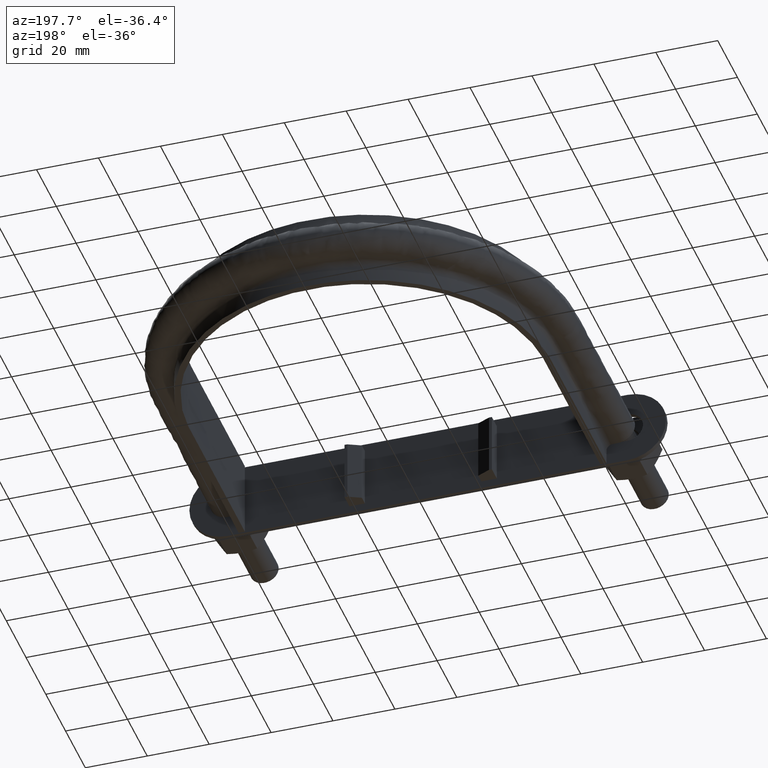
[diagram: clean part render]
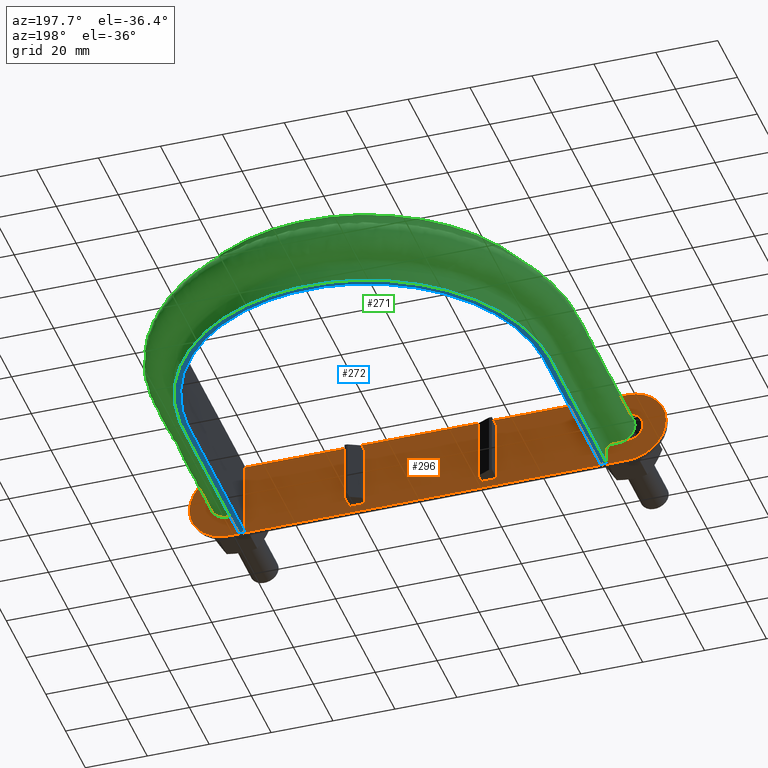
[diagram: same view with three faces highlighted in distinct colors, each labeled with its STEP entity id]
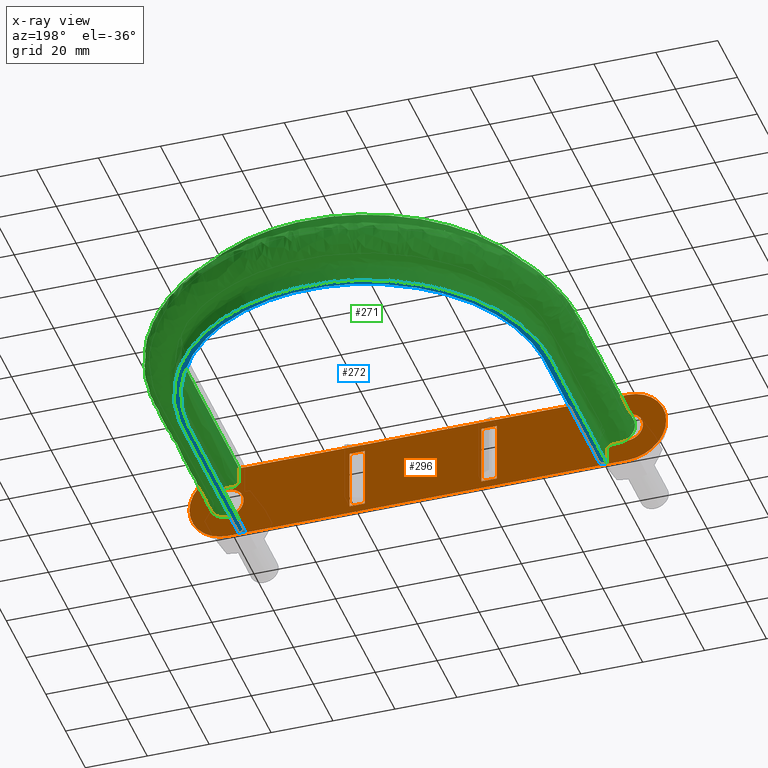
[diagram: x-ray of the same camera — body ghosted, the three highlighted faces saturated]
A machine part, auxiliary view with three faces highlighted in distinct colors.
The next image is the same camera in x-ray (body ghosted, the three faces saturated) — at least one of them is partly hidden behind the body in this view.
Their STEP definitions:

[orange] entity #296 — the highlighted planar face has unit normal (0, 1, 0).
#296 = ADVANCED_FACE( '', ( #445, #446, #447, #448, #449 ), #450, .T. );
#445 = FACE_BOUND( '', #1352, .T. );
#446 = FACE_OUTER_BOUND( '', #1353, .T. );
#447 = FACE_BOUND( '', #1354, .T. );
#448 = FACE_BOUND( '', #1355, .T. );
#449 = FACE_BOUND( '', #1356, .T. );
#450 = PLANE( '', #1357 );
#1352 = EDGE_LOOP( '', ( #1726, #1727, #1728, #1729 ) );
#1353 = EDGE_LOOP( '', ( #1730, #1731, #1732, #1733, #1734, #1735 ) );
#1354 = EDGE_LOOP( '', ( #1736 ) );
#1355 = EDGE_LOOP( '', ( #1737, #1738, #1739, #1740 ) );
#1356 = EDGE_LOOP( '', ( #1741, #1742, #1743, #1744 ) );
#1357 = AXIS2_PLACEMENT_3D( '', #1745, #1746, #1747 );
#1726 = ORIENTED_EDGE( '', *, *, #2405, .T. );
#1727 = ORIENTED_EDGE( '', *, *, #2406, .T. );
#1728 = ORIENTED_EDGE( '', *, *, #2407, .F. );
#1729 = ORIENTED_EDGE( '', *, *, #2408, .F. );
#1730 = ORIENTED_EDGE( '', *, *, #2409, .T. );
#1731 = ORIENTED_EDGE( '', *, *, #2410, .T. );
#1732 = ORIENTED_EDGE( '', *, *, #2411, .T. );
#1733 = ORIENTED_EDGE( '', *, *, #2412, .T. );
#1734 = ORIENTED_EDGE( '', *, *, #2413, .T. );
#1735 = ORIENTED_EDGE( '', *, *, #2414, .T. );
#1736 = ORIENTED_EDGE( '', *, *, #2415, .F. );
#1737 = ORIENTED_EDGE( '', *, *, #2416, .F. );
#1738 = ORIENTED_EDGE( '', *, *, #2417, .F. );
#1739 = ORIENTED_EDGE( '', *, *, #2418, .F. );
#1740 = ORIENTED_EDGE( '', *, *, #2419, .F. );
#1741 = ORIENTED_EDGE( '', *, *, #2420, .F. );
#1742 = ORIENTED_EDGE( '', *, *, #2421, .T. );
#1743 = ORIENTED_EDGE( '', *, *, #2422, .T. );
#1744 = ORIENTED_EDGE( '', *, *, #2423, .F. );
#1745 = CARTESIAN_POINT( '', ( -66.0000000000000, 36.8000000000000, 6.64905865105452E-010 ) );
#1746 = DIRECTION( '', ( 2.51087312473002E-018, 1.00000000000000, 5.34725563500670E-016 ) );
#1747 = DIRECTION( '', ( 1.00743302589043E-011, -5.34725563500696E-016, 1.00000000000000 ) );
#2405 = EDGE_CURVE( '', #2671, #2672, #2673, .T. );
#2406 = EDGE_CURVE( '', #2672, #2674, #2675, .T. );
#2407 = EDGE_CURVE( '', #2676, #2674, #2677, .T. );
#2408 = EDGE_CURVE( '', #2671, #2676, #2678, .T. );
#2409 = EDGE_CURVE( '', #2679, #2680, #2681, .T. );
#2410 = EDGE_CURVE( '', #2680, #2682, #2683, .T. );
#2411 = EDGE_CURVE( '', #2682, #2684, #2685, .T. );
#2412 = EDGE_CURVE( '', #2684, #2686, #2687, .T. );
#2413 = EDGE_CURVE( '', #2686, #2688, #2689, .T. );
#2414 = EDGE_CURVE( '', #2688, #2679, #2690, .T. );
#2415 = EDGE_CURVE( '', #2691, #2691, #2692, .T. );
#2416 = EDGE_CURVE( '', #2693, #2694, #2695, .F. );
#2417 = EDGE_CURVE( '', #2696, #2693, #2697, .T. );
#2418 = EDGE_CURVE( '', #2698, #2696, #2699, .F. );
#2419 = EDGE_CURVE( '', #2694, #2698, #2700, .T. );
#2420 = EDGE_CURVE( '', #2701, #2702, #2703, .T. );
#2421 = EDGE_CURVE( '', #2701, #2704, #2705, .T. );
#2422 = EDGE_CURVE( '', #2704, #2706, #2707, .T. );
#2423 = EDGE_CURVE( '', #2702, #2706, #2708, .T. );
#2671 = VERTEX_POINT( '', #3305 );
#2672 = VERTEX_POINT( '', #3306 );
#2673 = LINE( '', #3307, #3308 );
#2674 = VERTEX_POINT( '', #3309 );
#2675 = LINE( '', #3310, #3311 );
#2676 = VERTEX_POINT( '', #3312 );
#2677 = LINE( '', #3313, #3314 );
#2678 = LINE( '', #3315, #3316 );
#2679 = VERTEX_POINT( '', #3317 );
#2680 = VERTEX_POINT( '', #3318 );
#2681 = CIRCLE( '', #3319, 12.5000000000000 );
#2682 = VERTEX_POINT( '', #3320 );
#2683 = LINE( '', #3321, #3322 );
#2684 = VERTEX_POINT( '', #3323 );
#2685 = CIRCLE( '', #3324, 12.5000000000000 );
#2686 = VERTEX_POINT( '', #3325 );
#2687 = CIRCLE( '', #3326, 12.5000000000000 );
#2688 = VERTEX_POINT( '', #3327 );
#2689 = LINE( '', #3328, #3329 );
#2690 = CIRCLE( '', #3330, 12.5000000000000 );
#2691 = VERTEX_POINT( '', #3331 );
#2692 = CIRCLE( '', #3332, 5.00000000000000 );
#2693 = VERTEX_POINT( '', #3333 );
#2694 = VERTEX_POINT( '', #3334 );
#2695 = CIRCLE( '', #3335, 5.00000000000000 );
#2696 = VERTEX_POINT( '', #3336 );
#2697 = LINE( '', #3337, #3338 );
#2698 = VERTEX_POINT( '', #3339 );
#2699 = CIRCLE( '', #3340, 5.00000000000000 );
#2700 = LINE( '', #3341, #3342 );
#2701 = VERTEX_POINT( '', #3343 );
#2702 = VERTEX_POINT( '', #3344 );
#2703 = LINE( '', #3345, #3346 );
#2704 = VERTEX_POINT( '', #3347 );
#2705 = LINE( '', #3348, #3349 );
#2706 = VERTEX_POINT( '', #3350 );
#2707 = LINE( '', #3351, #3352 );
#2708 = LINE( '', #3353, #3354 );
#3305 = CARTESIAN_POINT( '', ( -23.8000000001008, 36.8000000000000, -9.99999999976023 ) );
#3306 = CARTESIAN_POINT( '', ( -18.8000000001008, 36.8000000000000, -9.99999999981060 ) );
#3307 = CARTESIAN_POINT( '', ( -23.8000000001008, 36.8000000000000, -9.99999999976023 ) );
#3308 = VECTOR( '', #3935, 1000.00000000000 );
#3309 = CARTESIAN_POINT( '', ( -18.7999999998993, 36.8000000000000, 10.0000000001894 ) );
#3310 = CARTESIAN_POINT( '', ( -18.8000000001008, 36.8000000000000, -9.99999999981060 ) );
#3311 = VECTOR( '', #3936, 1000.00000000000 );
#3312 = CARTESIAN_POINT( '', ( -23.7999999998993, 36.8000000000000, 10.0000000002398 ) );
#3313 = CARTESIAN_POINT( '', ( -23.7999999998993, 36.8000000000000, 10.0000000002398 ) );
#3314 = VECTOR( '', #3937, 1000.00000000000 );
#3315 = CARTESIAN_POINT( '', ( -23.8000000001008, 36.8000000000000, -9.99999999976023 ) );
#3316 = VECTOR( '', #3938, 1000.00000000000 );
#3317 = CARTESIAN_POINT( '', ( -78.5000000000000, 36.8000000000000, 7.90838462788708E-010 ) );
#3318 = CARTESIAN_POINT( '', ( -65.9999999998741, 36.8000000000000, 12.5000000006649 ) );
#3319 = AXIS2_PLACEMENT_3D( '', #3939, #3940, #3941 );
#3320 = CARTESIAN_POINT( '', ( 63.0000000001259, 36.8000000000000, 12.4999999993653 ) );
#3321 = CARTESIAN_POINT( '', ( -65.9999999998741, 36.8000000000000, 12.5000000006649 ) );
#3322 = VECTOR( '', #3942, 1000.00000000000 );
#3323 = CARTESIAN_POINT( '', ( 75.5000000000000, 36.8000000000000, -7.60611866529501E-010 ) );
#3324 = AXIS2_PLACEMENT_3D( '', #3943, #3944, #3945 );
#3325 = CARTESIAN_POINT( '', ( 62.9999999998741, 36.8000000000000, -12.5000000006347 ) );
#3326 = AXIS2_PLACEMENT_3D( '', #3946, #3947, #3948 );
#3327 = CARTESIAN_POINT( '', ( -66.0000000001260, 36.8000000000000, -12.4999999993351 ) );
#3328 = CARTESIAN_POINT( '', ( 62.9999999998740, 36.8000000000000, -12.5000000006347 ) );
#3329 = VECTOR( '', #3949, 1000.00000000000 );
#3330 = AXIS2_PLACEMENT_3D( '', #3950, #3951, #3952 );
#3331 = CARTESIAN_POINT( '', ( 68.0000000000000, 36.8000100000000, -6.85052654858896E-010 ) );
#3332 = AXIS2_PLACEMENT_3D( '', #3953, #3954, #3955 );
#3333 = CARTESIAN_POINT( '', ( -66.0000000000504, 36.8000000000000, -4.99999999933509 ) );
#3334 = CARTESIAN_POINT( '', ( -65.9999999999496, 36.8000000000000, 5.00000000066491 ) );
#3335 = AXIS2_PLACEMENT_3D( '', #3956, #3957, #3958 );
#3336 = CARTESIAN_POINT( '', ( -62.0000000000504, 36.8000000000000, -4.99999999937539 ) );
#3337 = CARTESIAN_POINT( '', ( -66.0000000000504, 36.8000000000000, -4.99999999933509 ) );
#3338 = VECTOR( '', #3959, 1000.00000000000 );
#3339 = CARTESIAN_POINT( '', ( -61.9999999999496, 36.8000000000000, 5.00000000062461 ) );
#3340 = AXIS2_PLACEMENT_3D( '', #3960, #3961, #3962 );
#3341 = CARTESIAN_POINT( '', ( -61.9999999999496, 36.8000000000000, 5.00000000062461 ) );
#3342 = VECTOR( '', #3963, 1000.00000000000 );
#3343 = CARTESIAN_POINT( '', ( 18.7999999998993, 36.8000000000000, -10.0000000001894 ) );
#3344 = CARTESIAN_POINT( '', ( 18.8000000001007, 36.8000000000000, 9.99999999981060 ) );
#3345 = CARTESIAN_POINT( '', ( 18.7999999998993, 36.8000000000000, -10.0000000001894 ) );
#3346 = VECTOR( '', #3964, 1000.00000000000 );
#3347 = CARTESIAN_POINT( '', ( 23.7999999998993, 36.8000000000000, -10.0000000002398 ) );
#3348 = CARTESIAN_POINT( '', ( 18.7999999998993, 36.8000000000000, -10.0000000001894 ) );
#3349 = VECTOR( '', #3965, 1000.00000000000 );
#3350 = CARTESIAN_POINT( '', ( 23.8000000001007, 36.8000000000000, 9.99999999976023 ) );
#3351 = CARTESIAN_POINT( '', ( 23.7999999998993, 36.8000000000000, -10.0000000002398 ) );
#3352 = VECTOR( '', #3966, 1000.00000000000 );
#3353 = CARTESIAN_POINT( '', ( 18.8000000001008, 36.8000000000000, 9.99999999981060 ) );
#3354 = VECTOR( '', #3967, 1000.00000000000 );
#3935 = DIRECTION( '', ( 1.00000000000000, -2.51087311934302E-018, -1.00743302589043E-011 ) );
#3936 = DIRECTION( '', ( 1.00742030025083E-011, -2.91483712562017E-016, 1.00000000000000 ) );
#3937 = DIRECTION( '', ( 1.00000000000000, -2.51087311934302E-018, -1.00743302589043E-011 ) );
#3938 = DIRECTION( '', ( 1.00742030025083E-011, -2.91483712562017E-016, 1.00000000000000 ) );
#3939 = CARTESIAN_POINT( '', ( -66.0000000000000, 36.8000000000000, 6.64905865105452E-010 ) );
#3940 = DIRECTION( '', ( 2.51087312473002E-018, 1.00000000000000, 5.34725563500670E-016 ) );
#3941 = DIRECTION( '', ( -1.00000000000000, 2.51087311934309E-018, 1.00741914810262E-011 ) );
#3942 = DIRECTION( '', ( 1.00000000000000, -2.51087311934302E-018, -1.00743302589043E-011 ) );
#3943 = CARTESIAN_POINT( '', ( 63.0000000000000, 36.8000000000000, -6.34682738293198E-010 ) );
#3944 = DIRECTION( '', ( 2.51087312473002E-018, 1.00000000000000, 5.34725563500670E-016 ) );
#3945 = DIRECTION( '', ( 1.00743302589043E-011, -5.34725563500696E-016, 1.00000000000000 ) );
#3946 = CARTESIAN_POINT( '', ( 63.0000000000000, 36.8000000000000, -6.34679268846246E-010 ) );
#3947 = DIRECTION( '', ( 2.51087312473002E-018, 1.00000000000000, 5.34725563500670E-016 ) );
#3948 = DIRECTION( '', ( 1.00000000000000, -2.51087311934309E-018, -1.00741914810262E-011 ) );
#3949 = DIRECTION( '', ( -1.00000000000000, 2.51087311934302E-018, 1.00743302589043E-011 ) );
#3950 = CARTESIAN_POINT( '', ( -66.0000000000000, 36.8000000000000, 6.64909334552404E-010 ) );
#3951 = DIRECTION( '', ( 2.51087312473002E-018, 1.00000000000000, 5.34725563500670E-016 ) );
#3952 = DIRECTION( '', ( -1.00743302589043E-011, 5.34725563500696E-016, -1.00000000000000 ) );
#3953 = CARTESIAN_POINT( '', ( 63.0000000000000, 36.8000100000000, -6.34681003564374E-010 ) );
#3954 = DIRECTION( '', ( 2.51087312473002E-018, 1.00000000000000, 5.34725563500670E-016 ) );
#3955 = DIRECTION( '', ( 1.00000000000000, -2.51087311934302E-018, -1.00743302589043E-011 ) );
#3956 = CARTESIAN_POINT( '', ( -66.0000000000000, 36.8000000000000, 6.64907599828928E-010 ) );
#3957 = DIRECTION( '', ( -2.51087312473002E-018, -1.00000000000000, -5.34725563500670E-016 ) );
#3958 = DIRECTION( '', ( -1.00000000000000, 2.51087311934302E-018, 1.00743302589043E-011 ) );
#3959 = DIRECTION( '', ( -1.00000000000000, 2.51087311934302E-018, 1.00743302589043E-011 ) );
#3960 = CARTESIAN_POINT( '', ( -62.0000000000000, 36.8000000000000, 6.24610278793311E-010 ) );
#3961 = DIRECTION( '', ( -2.51087312473002E-018, -1.00000000000000, -5.34725563500670E-016 ) );
#3962 = DIRECTION( '', ( -1.00000000000000, 2.51087311934302E-018, 1.00743302589043E-011 ) );
#3963 = DIRECTION( '', ( 1.00000000000000, -2.51087311934302E-018, -1.00743302589043E-011 ) );
#3964 = DIRECTION( '', ( 1.00742030025083E-011, -2.91483712562017E-016, 1.00000000000000 ) );
#3965 = DIRECTION( '', ( 1.00000000000000, -2.51087311934302E-018, -1.00743302589043E-011 ) );
#3966 = DIRECTION( '', ( 1.00742030025083E-011, -2.91483712562017E-016, 1.00000000000000 ) );
#3967 = DIRECTION( '', ( 1.00000000000000, -2.51087311934302E-018, -1.00743302589043E-011 ) );

[blue] entity #272 — the highlighted planar face has unit normal (0, 0, 1).
#272 = ADVANCED_FACE( '', ( #390 ), #391, .F. );
#390 = FACE_OUTER_BOUND( '', #1138, .T. );
#391 = PLANE( '', #1139 );
#1138 = EDGE_LOOP( '', ( #1585, #1586, #1587, #1588 ) );
#1139 = AXIS2_PLACEMENT_3D( '', #1589, #1590, #1591 );
#1585 = ORIENTED_EDGE( '', *, *, #2367, .F. );
#1586 = ORIENTED_EDGE( '', *, *, #2362, .F. );
#1587 = ORIENTED_EDGE( '', *, *, #2370, .F. );
#1588 = ORIENTED_EDGE( '', *, *, #2365, .F. );
#1589 = CARTESIAN_POINT( '', ( 75.0000000000000, 167.300000000000, -12.5000000000000 ) );
#1590 = DIRECTION( '', ( 0.000000000000000, 0.000000000000000, 1.00000000000000 ) );
#1591 = DIRECTION( '', ( 1.22460635382238E-016, 1.00000000000000, 0.000000000000000 ) );
#2362 = EDGE_CURVE( '', #2602, #2598, #2604, .T. );
#2365 = EDGE_CURVE( '', #2608, #2610, #2611, .T. );
#2367 = EDGE_CURVE( '', #2598, #2608, #2613, .F. );
#2370 = EDGE_CURVE( '', #2610, #2602, #2616, .F. );
#2598 = VERTEX_POINT( '', #2992 );
#2602 = VERTEX_POINT( '', #2998 );
#2604 = LINE( '', #3030, #3031 );
#2608 = VERTEX_POINT( '', #3036 );
#2610 = VERTEX_POINT( '', #3039 );
#2611 = LINE( '', #3040, #3041 );
#2613 = B_SPLINE_CURVE_WITH_KNOTS( '', 3, ( #3073, #3074, #3075, #3076, #3077, #3078, #3079, #3080, #3081, #3082, #3083, #3084, #3085, #3086, #3087, #3088 ), .UNSPECIFIED., .F., .F., ( 4, 3, 1, 1, 1, 1, 1, 1, 3, 4 ), ( -8.93693843594010, -8.00000000000000, -7.00000000000000, -6.00000000000000, -5.00000000000000, -4.00000000000000, -3.00000000000000, -2.00000000000000, -1.00000000000000, -0.0630615640599001 ), .UNSPECIFIED. );
#2616 = B_SPLINE_CURVE_WITH_KNOTS( '', 3, ( #3193, #3194, #3195, #3196, #3197, #3198, #3199, #3200, #3201, #3202, #3203, #3204, #3205, #3206, #3207, #3208 ), .UNSPECIFIED., .F., .F., ( 4, 3, 1, 1, 1, 1, 1, 1, 3, 4 ), ( 0.0630615640599001, 1.00000000000000, 2.00000000000000, 3.00000000000000, 4.00000000000000, 5.00000000000000, 6.00000000000000, 7.00000000000000, 8.00000000000000, 8.93693843594010 ), .UNSPECIFIED. );
#2992 = CARTESIAN_POINT( '', ( -57.4000000000000, 37.3000000000000, -12.5000000000000 ) );
#2998 = CARTESIAN_POINT( '', ( -59.4000000000000, 37.3000000000000, -12.5000000000000 ) );
#3030 = CARTESIAN_POINT( '', ( -75.0000000000000, 37.3000000000000, -12.5000000000000 ) );
#3031 = VECTOR( '', #3871, 1000.00000000000 );
#3036 = CARTESIAN_POINT( '', ( 57.4000000000000, 37.3000000000000, -12.5000000000000 ) );
#3039 = CARTESIAN_POINT( '', ( 59.4000000000000, 37.3000000000000, -12.5000000000000 ) );
#3040 = CARTESIAN_POINT( '', ( -75.0000000000000, 37.3000000000000, -12.5000000000000 ) );
#3041 = VECTOR( '', #3874, 1000.00000000000 );
#3073 = CARTESIAN_POINT( '', ( 57.4000000000000, 37.3000000000000, -12.5000000000000 ) );
#3074 = CARTESIAN_POINT( '', ( 57.4000000000000, 56.0700000000000, -12.5000000000000 ) );
#3075 = CARTESIAN_POINT( '', ( 57.4000000000000, 74.8399999999999, -12.5000000000000 ) );
#3076 = CARTESIAN_POINT( '', ( 57.4000000000000, 93.6100000000000, -12.5000000000000 ) );
#3077 = CARTESIAN_POINT( '', ( 57.4000000000000, 102.180493203978, -12.5000000000000 ) );
#3078 = CARTESIAN_POINT( '', ( 53.4810424094545, 119.371852668646, -12.5000000000000 ) );
#3079 = CARTESIAN_POINT( '', ( 37.0100296725023, 140.017335605858, -12.5000000000000 ) );
#3080 = CARTESIAN_POINT( '', ( 13.2087266606841, 151.481567469912, -12.5000000000000 ) );
#3081 = CARTESIAN_POINT( '', ( -13.2087266606841, 151.481567469912, -12.5000000000000 ) );
#3082 = CARTESIAN_POINT( '', ( -37.0100296725023, 140.017335605858, -12.5000000000000 ) );
#3083 = CARTESIAN_POINT( '', ( -53.4810424094545, 119.371852668646, -12.5000000000000 ) );
#3084 = CARTESIAN_POINT( '', ( -57.4000000000000, 102.180493203978, -12.5000000000000 ) );
#3085 = CARTESIAN_POINT( '', ( -57.4000000000000, 93.6100000000000, -12.5000000000000 ) );
#3086 = CARTESIAN_POINT( '', ( -57.4000000000000, 74.8400000000000, -12.5000000000000 ) );
#3087 = CARTESIAN_POINT( '', ( -57.4000000000000, 56.0700000000000, -12.5000000000000 ) );
#3088 = CARTESIAN_POINT( '', ( -57.4000000000000, 37.3000000000000, -12.5000000000000 ) );
#3193 = CARTESIAN_POINT( '', ( -59.4000000000000, 37.3000000000000, -12.5000000000000 ) );
#3194 = CARTESIAN_POINT( '', ( -59.4000000000000, 56.0700000000000, -12.5000000000000 ) );
#3195 = CARTESIAN_POINT( '', ( -59.4000000000000, 74.8400000000000, -12.5000000000000 ) );
#3196 = CARTESIAN_POINT( '', ( -59.4000000000000, 93.6100000000000, -12.5000000000000 ) );
#3197 = CARTESIAN_POINT( '', ( -59.4000000000000, 102.484817836499, -12.5000000000000 ) );
#3198 = CARTESIAN_POINT( '', ( -55.3444933644878, 120.266836188810, -12.5000000000000 ) );
#3199 = CARTESIAN_POINT( '', ( -38.2995777447149, 141.635011205915, -12.5000000000000 ) );
#3200 = CARTESIAN_POINT( '', ( -13.6689610391051, 153.497859339138, -12.5000000000000 ) );
#3201 = CARTESIAN_POINT( '', ( 13.6689610391052, 153.497859339137, -12.5000000000000 ) );
#3202 = CARTESIAN_POINT( '', ( 38.2995777447150, 141.635011205915, -12.5000000000000 ) );
#3203 = CARTESIAN_POINT( '', ( 55.3444933644878, 120.266836188810, -12.5000000000000 ) );
#3204 = CARTESIAN_POINT( '', ( 59.4000000000000, 102.484817836499, -12.5000000000000 ) );
#3205 = CARTESIAN_POINT( '', ( 59.4000000000000, 93.6100000000000, -12.5000000000000 ) );
#3206 = CARTESIAN_POINT( '', ( 59.4000000000000, 74.8400000000000, -12.5000000000000 ) );
#3207 = CARTESIAN_POINT( '', ( 59.4000000000000, 56.0700000000000, -12.5000000000000 ) );
#3208 = CARTESIAN_POINT( '', ( 59.4000000000000, 37.3000000000000, -12.5000000000000 ) );
#3871 = DIRECTION( '', ( 1.00000000000000, -1.22460635382238E-016, 0.000000000000000 ) );
#3874 = DIRECTION( '', ( 1.00000000000000, -1.22460635382238E-016, 0.000000000000000 ) );

[green] entity #271 — the highlighted face is a freeform B-spline surface patch.
#271 = ADVANCED_FACE( '', ( #388 ), #389, .F. );
#388 = FACE_OUTER_BOUND( '', #641, .T. );
#389 = B_SPLINE_SURFACE_WITH_KNOTS( '', 3, 3, ( ( #642, #643, #644, #645, #646, #647, #648, #649, #650, #651, #652, #653, #654, #655, #656, #657 ), ( #658, #659, #660, #661, #662, #663, #664, #665, #666, #667, #668, #669, #670, #671, #672, #673 ), ( #674, #675, #676, #677, #678, #679, #680, #681, #682, #683, #684, #685, #686, #687, #688, #689 ), ( #690, #691, #692, #693, #694, #695, #696, #697, #698, #699, #700, #701, #702, #703, #704, #705 ), ( #706, #707, #708, #709, #710, #711, #712, #713, #714, #715, #716, #717, #718, #719, #720, #721 ), ( #722, #723, #724, #725, #726, #727, #728, #729, #730, #731, #732, #733, #734, #735, #736, #737 ), ( #738, #739, #740, #741, #742, #743, #744, #745, #746, #747, #748, #749, #750, #751, #752, #753 ), ( #754, #755, #756, #757, #758, #759, #760, #761, #762, #763, #764, #765, #766, #767, #768, #769 ), ( #770, #771, #772, #773, #774, #775, #776, #777, #778, #779, #780, #781, #782, #783, #784, #785 ), ( #786, #787, #788, #789, #790, #791, #792, #793, #794, #795, #796, #797, #798, #799, #800, #801 ), ( #802, #803, #804, #805, #806, #807, #808, #809, #810, #811, #812, #813, #814, #815, #816, #817 ), ( #818, #819, #820, #821, #822, #823, #824, #825, #826, #827, #828, #829, #830, #831, #832, #833 ), ( #834, #835, #836, #837, #838, #839, #840, #841, #842, #843, #844, #845, #846, #847, #848, #849 ), ( #850, #851, #852, #853, #854, #855, #856, #857, #858, #859, #860, #861, #862, #863, #864, #865 ), ( #866, #867, #868, #869, #870, #871, #872, #873, #874, #875, #876, #877, #878, #879, #880, #881 ), ( #882, #883, #884, #885, #886, #887, #888, #889, #890, #891, #892, #893, #894, #895, #896, #897 ), ( #898, #899, #900, #901, #902, #903, #904, #905, #906, #907, #908, #909, #910, #911, #912, #913 ), ( #914, #915, #916, #917, #918, #919, #920, #921, #922, #923, #924, #925, #926, #927, #928, #929 ), ( #930, #931, #932, #933, #934, #935, #936, #937, #938, #939, #940, #941, #942, #943, #944, #945 ), ( #946, #947, #948, #949, #950, #951, #952, #953, #954, #955, #956, #957, #958, #959, #960, #961 ), ( #962, #963, #964, #965, #966, #967, #968, #969, #970, #971, #972, #973, #974, #975, #976, #977 ), ( #978, #979, #980, #981, #982, #983, #984, #985, #986, #987, #988, #989, #990, #991, #992, #993 ), ( #994, #995, #996, #997, #998, #999, #1000, #1001, #1002, #1003, #1004, #1005, #1006, #1007, #1008, #1009 ), ( #1010, #1011, #1012, #1013, #1014, #1015, #1016, #1017, #1018, #1019, #1020, #1021, #1022, #1023, #1024, #1025 ), ( #1026, #1027, #1028, #1029, #1030, #1031, #1032, #1033, #1034, #1035, #1036, #1037, #1038, #1039, #1040, #1041 ), ( #1042, #1043, #1044, #1045, #1046, #1047, #1048, #1049, #1050, #1051, #1052, #1053, #1054, #1055, #1056, #1057 ), ( #1058, #1059, #1060, #1061, #1062, #1063, #1064, #1065, #1066, #1067, #1068, #1069, #1070, #1071, #1072, #1073 ), ( #1074, #1075, #1076, #1077, #1078, #1079, #1080, #1081, #1082, #1083, #1084, #1085, #1086, #1087, #1088, #1089 ), ( #1090, #1091, #1092, #1093, #1094, #1095, #1096, #1097, #1098, #1099, #1100, #1101, #1102, #1103, #1104, #1105 ), ( #1106, #1107, #1108, #1109, #1110, #1111, #1112, #1113, #1114, #1115, #1116, #1117, #1118, #1119, #1120, #1121 ), ( #1122, #1123, #1124, #1125, #1126, #1127, #1128, #1129, #1130, #1131, #1132, #1133, #1134, #1135, #1136, #1137 ) ), .UNSPECIFIED., .F., .F., .F., ( 4, 3, 1, 1, 1, 3, 3, 1, 1, 1, 3, 3, 1, 1, 1, 3, 4 ), ( 4, 3, 1, 1, 1, 1, 1, 1, 3, 4 ), ( 0.105263157894737, 0.157894736842105, 0.210526315789474, 0.263157894736842, 0.315789473684211, 0.368421052631579, 0.421052631578947, 0.473684210526316, 0.526315789473684, 0.578947368421053, 0.631578947368421, 0.684210526315789, 0.736842105263158, 0.789473684210526, 0.842105263157895, 0.894736842105263, 0.947368421052632 ), ( 0.000000000000000, 1.00000000000000, 2.00000000000000, 3.00000000000000, 4.00000000000000, 5.00000000000000, 6.00000000000000, 7.00000000000000, 8.00000000000000, 9.00000000000000 ), .UNSPECIFIED. );
#641 = EDGE_LOOP( '', ( #1581, #1582, #1583, #1584 ) );
#642 = CARTESIAN_POINT( '', ( -59.4000000000000, 33.5100000000000, 12.5000000000000 ) );
#643 = CARTESIAN_POINT( '', ( -59.4000000000000, 53.5433333333334, 12.5000000000000 ) );
#644 = CARTESIAN_POINT( '', ( -59.4000000000000, 73.5766666666667, 12.5000000000000 ) );
#645 = CARTESIAN_POINT( '', ( -59.4000000000000, 93.6100000000000, 12.5000000000000 ) );
#646 = CARTESIAN_POINT( '', ( -59.4000000000000, 102.484817836499, 12.5000000000000 ) );
#647 = CARTESIAN_POINT( '', ( -55.3444933644878, 120.266836188810, 12.5000000000000 ) );
#648 = CARTESIAN_POINT( '', ( -38.2995777447149, 141.635011205915, 12.5000000000000 ) );
#649 = CARTESIAN_POINT( '', ( -13.6689610391051, 153.497859339137, 12.5000000000000 ) );
#650 = CARTESIAN_POINT( '', ( 13.6689610391052, 153.497859339137, 12.5000000000000 ) );
#651 = CARTESIAN_POINT( '', ( 38.2995777447150, 141.635011205915, 12.5000000000000 ) );
#652 = CARTESIAN_POINT( '', ( 55.3444933644878, 120.266836188810, 12.5000000000000 ) );
#653 = CARTESIAN_POINT( '', ( 59.4000000000000, 102.484817836499, 12.5000000000000 ) );
#654 = CARTESIAN_POINT( '', ( 59.4000000000000, 93.6100000000000, 12.5000000000000 ) );
#655 = CARTESIAN_POINT( '', ( 59.4000000000000, 73.5766666666666, 12.5000000000000 ) );
#656 = CARTESIAN_POINT( '', ( 59.4000000000000, 53.5433333333333, 12.5000000000000 ) );
#657 = CARTESIAN_POINT( '', ( 59.4000000000000, 33.5100000000000, 12.5000000000000 ) );
#658 = CARTESIAN_POINT( '', ( -59.4000000000000, 33.5100000000000, 10.8666666666667 ) );
#659 = CARTESIAN_POINT( '', ( -59.4000000000000, 53.5433333333334, 10.8666666666667 ) );
#660 = CARTESIAN_POINT( '', ( -59.4000000000000, 73.5766666666667, 10.8666666666667 ) );
#661 = CARTESIAN_POINT( '', ( -59.4000000000000, 93.6100000000000, 10.8666666666667 ) );
#662 = CARTESIAN_POINT( '', ( -59.4000000000000, 102.484817836499, 10.8666666666667 ) );
#663 = CARTESIAN_POINT( '', ( -55.3444933644878, 120.266836188810, 10.8666666666667 ) );
#664 = CARTESIAN_POINT( '', ( -38.2995777447149, 141.635011205915, 10.8666666666667 ) );
#665 = CARTESIAN_POINT( '', ( -13.6689610391051, 153.497859339137, 10.8666666666667 ) );
#666 = CARTESIAN_POINT( '', ( 13.6689610391052, 153.497859339137, 10.8666666666667 ) );
#667 = CARTESIAN_POINT( '', ( 38.2995777447150, 141.635011205915, 10.8666666666667 ) );
#668 = CARTESIAN_POINT( '', ( 55.3444933644878, 120.266836188810, 10.8666666666667 ) );
#669 = CARTESIAN_POINT( '', ( 59.4000000000000, 102.484817836499, 10.8666666666667 ) );
#670 = CARTESIAN_POINT( '', ( 59.4000000000000, 93.6100000000000, 10.8666666666667 ) );
#671 = CARTESIAN_POINT( '', ( 59.4000000000000, 73.5766666666666, 10.8666666666667 ) );
#672 = CARTESIAN_POINT( '', ( 59.4000000000000, 53.5433333333333, 10.8666666666667 ) );
#673 = CARTESIAN_POINT( '', ( 59.4000000000000, 33.5100000000000, 10.8666666666667 ) );
#674 = CARTESIAN_POINT( '', ( -59.4000000000000, 33.5100000000000, 9.23333333333334 ) );
#675 = CARTESIAN_POINT( '', ( -59.4000000000000, 53.5433333333334, 9.23333333333334 ) );
#676 = CARTESIAN_POINT( '', ( -59.4000000000000, 73.5766666666667, 9.23333333333334 ) );
#677 = CARTESIAN_POINT( '', ( -59.4000000000000, 93.6100000000000, 9.23333333333334 ) );
#678 = CARTESIAN_POINT( '', ( -59.4000000000000, 102.484817836499, 9.23333333333334 ) );
#679 = CARTESIAN_POINT( '', ( -55.3444933644878, 120.266836188810, 9.23333333333333 ) );
#680 = CARTESIAN_POINT( '', ( -38.2995777447149, 141.635011205915, 9.23333333333334 ) );
#681 = CARTESIAN_POINT( '', ( -13.6689610391051, 153.497859339138, 9.23333333333334 ) );
#682 = CARTESIAN_POINT( '', ( 13.6689610391052, 153.497859339137, 9.23333333333334 ) );
#683 = CARTESIAN_POINT( '', ( 38.2995777447150, 141.635011205915, 9.23333333333335 ) );
#684 = CARTESIAN_POINT( '', ( 55.3444933644878, 120.266836188810, 9.23333333333334 ) );
#685 = CARTESIAN_POINT( '', ( 59.4000000000000, 102.484817836499, 9.23333333333334 ) );
#686 = CARTESIAN_POINT( '', ( 59.4000000000000, 93.6100000000000, 9.23333333333334 ) );
#687 = CARTESIAN_POINT( '', ( 59.4000000000000, 73.5766666666666, 9.23333333333334 ) );
#688 = CARTESIAN_POINT( '', ( 59.4000000000000, 53.5433333333333, 9.23333333333334 ) );
#689 = CARTESIAN_POINT( '', ( 59.4000000000000, 33.5100000000000, 9.23333333333334 ) );
#690 = CARTESIAN_POINT( '', ( -59.4000000000000, 33.5100000000000, 7.60000000000001 ) );
#691 = CARTESIAN_POINT( '', ( -59.4000000000000, 53.5433333333334, 7.60000000000001 ) );
#692 = CARTESIAN_POINT( '', ( -59.4000000000000, 73.5766666666667, 7.60000000000001 ) );
#693 = CARTESIAN_POINT( '', ( -59.4000000000000, 93.6100000000000, 7.60000000000001 ) );
#694 = CARTESIAN_POINT( '', ( -59.4000000000000, 102.484817836499, 7.60000000000001 ) );
#695 = CARTESIAN_POINT( '', ( -55.3444933644878, 120.266836188810, 7.60000000000000 ) );
#696 = CARTESIAN_POINT( '', ( -38.2995777447149, 141.635011205915, 7.60000000000001 ) );
#697 = CARTESIAN_POINT( '', ( -13.6689610391051, 153.497859339137, 7.60000000000001 ) );
#698 = CARTESIAN_POINT( '', ( 13.6689610391052, 153.497859339138, 7.60000000000001 ) );
#699 = CARTESIAN_POINT( '', ( 38.2995777447150, 141.635011205915, 7.60000000000002 ) );
#700 = CARTESIAN_POINT( '', ( 55.3444933644878, 120.266836188810, 7.60000000000001 ) );
#701 = CARTESIAN_POINT( '', ( 59.4000000000000, 102.484817836499, 7.60000000000001 ) );
#702 = CARTESIAN_POINT( '', ( 59.4000000000000, 93.6100000000000, 7.60000000000001 ) );
#703 = CARTESIAN_POINT( '', ( 59.4000000000000, 73.5766666666666, 7.60000000000001 ) );
#704 = CARTESIAN_POINT( '', ( 59.4000000000000, 53.5433333333333, 7.60000000000001 ) );
#705 = CARTESIAN_POINT( '', ( 59.4000000000000, 33.5100000000000, 7.60000000000001 ) );
#706 = CARTESIAN_POINT( '', ( -59.4000000000000, 33.5100000000000, 7.33823584172335 ) );
#707 = CARTESIAN_POINT( '', ( -59.4000000000000, 53.5433333333334, 7.33823584172335 ) );
#708 = CARTESIAN_POINT( '', ( -59.4000000000000, 73.5766666666667, 7.33823584172335 ) );
#709 = CARTESIAN_POINT( '', ( -59.4000000000000, 93.6100000000000, 7.33823584172335 ) );
#710 = CARTESIAN_POINT( '', ( -59.4000000000000, 102.484817836499, 7.33823584172335 ) );
#711 = CARTESIAN_POINT( '', ( -55.3444933644878, 120.266836188810, 7.33823584172334 ) );
#712 = CARTESIAN_POINT( '', ( -38.2995777447149, 141.635011205915, 7.33823584172335 ) );
#713 = CARTESIAN_POINT( '', ( -13.6689610391051, 153.497859339138, 7.33823584172334 ) );
#714 = CARTESIAN_POINT( '', ( 13.6689610391052, 153.497859339137, 7.33823584172335 ) );
#715 = CARTESIAN_POINT( '', ( 38.2995777447150, 141.635011205915, 7.33823584172335 ) );
#716 = CARTESIAN_POINT( '', ( 55.3444933644878, 120.266836188810, 7.33823584172334 ) );
#717 = CARTESIAN_POINT( '', ( 59.4000000000000, 102.484817836499, 7.33823584172334 ) );
#718 = CARTESIAN_POINT( '', ( 59.4000000000000, 93.6100000000000, 7.33823584172334 ) );
#719 = CARTESIAN_POINT( '', ( 59.4000000000000, 73.5766666666666, 7.33823584172335 ) );
#720 = CARTESIAN_POINT( '', ( 59.4000000000000, 53.5433333333333, 7.33823584172334 ) );
#721 = CARTESIAN_POINT( '', ( 59.4000000000000, 33.5100000000000, 7.33823584172334 ) );
#722 = CARTESIAN_POINT( '', ( -59.5041362568359, 33.5100000000000, 6.81470752517002 ) );
#723 = CARTESIAN_POINT( '', ( -59.5041362568359, 53.5433333333334, 6.81470752517002 ) );
#724 = CARTESIAN_POINT( '', ( -59.5041362568359, 73.5766666666667, 6.81470752517002 ) );
#725 = CARTESIAN_POINT( '', ( -59.5041362568359, 93.6100000000000, 6.81470752517002 ) );
#726 = CARTESIAN_POINT( '', ( -59.5041362568359, 102.500663450545, 6.81470752517002 ) );
#727 = CARTESIAN_POINT( '', ( -55.4415197681150, 120.313436305670, 6.81470752517002 ) );
#728 = CARTESIAN_POINT( '', ( -38.3667220993400, 141.719240546797, 6.81470752517002 ) );
#729 = CARTESIAN_POINT( '', ( -13.6929245818231, 153.602843883112, 6.81470752517001 ) );
#730 = CARTESIAN_POINT( '', ( 13.6929245818232, 153.602843883112, 6.81470752517002 ) );
#731 = CARTESIAN_POINT( '', ( 38.3667220993401, 141.719240546797, 6.81470752517003 ) );
#732 = CARTESIAN_POINT( '', ( 55.4415197681150, 120.313436305670, 6.81470752517002 ) );
#733 = CARTESIAN_POINT( '', ( 59.5041362568359, 102.500663450545, 6.81470752517002 ) );
#734 = CARTESIAN_POINT( '', ( 59.5041362568359, 93.6100000000000, 6.81470752517002 ) );
#735 = CARTESIAN_POINT( '', ( 59.5041362568359, 73.5766666666666, 6.81470752517002 ) );
#736 = CARTESIAN_POINT( '', ( 59.5041362568359, 53.5433333333333, 6.81470752517002 ) );
#737 = CARTESIAN_POINT( '', ( 59.5041362568359, 33.5100000000000, 6.81470752517002 ) );
#738 = CARTESIAN_POINT( '', ( -59.9489687109389, 33.5100000000000, 6.14896871093889 ) );
#739 = CARTESIAN_POINT( '', ( -59.9489687109389, 53.5433333333334, 6.14896871093889 ) );
#740 = CARTESIAN_POINT( '', ( -59.9489687109389, 73.5766666666667, 6.14896871093889 ) );
#741 = CARTESIAN_POINT( '', ( -59.9489687109389, 93.6100000000000, 6.14896871093889 ) );
#742 = CARTESIAN_POINT( '', ( -59.9489687109389, 102.568350187109, 6.14896871093889 ) );
#743 = CARTESIAN_POINT( '', ( -55.8559814988290, 120.512495163498, 6.14896871093888 ) );
#744 = CARTESIAN_POINT( '', ( -38.6535385161630, 142.079037850355, 6.14896871093889 ) );
#745 = CARTESIAN_POINT( '', ( -13.7952881758309, 154.051299913300, 6.14896871093888 ) );
#746 = CARTESIAN_POINT( '', ( 13.7952881758310, 154.051299913300, 6.14896871093889 ) );
#747 = CARTESIAN_POINT( '', ( 38.6535385161631, 142.079037850355, 6.14896871093889 ) );
#748 = CARTESIAN_POINT( '', ( 55.8559814988290, 120.512495163498, 6.14896871093888 ) );
#749 = CARTESIAN_POINT( '', ( 59.9489687109389, 102.568350187109, 6.14896871093888 ) );
#750 = CARTESIAN_POINT( '', ( 59.9489687109389, 93.6100000000000, 6.14896871093888 ) );
#751 = CARTESIAN_POINT( '', ( 59.9489687109389, 73.5766666666666, 6.14896871093889 ) );
#752 = CARTESIAN_POINT( '', ( 59.9489687109389, 53.5433333333333, 6.14896871093888 ) );
#753 = CARTESIAN_POINT( '', ( 59.9489687109389, 33.5100000000000, 6.14896871093888 ) );
#754 = CARTESIAN_POINT( '', ( -60.6147075251700, 33.5100000000000, 5.70413625683592 ) );
#755 = CARTESIAN_POINT( '', ( -60.6147075251700, 53.5433333333334, 5.70413625683592 ) );
#756 = CARTESIAN_POINT( '', ( -60.6147075251700, 73.5766666666667, 5.70413625683592 ) );
#757 = CARTESIAN_POINT( '', ( -60.6147075251700, 93.6100000000000, 5.70413625683592 ) );
#758 = CARTESIAN_POINT( '', ( -60.6147075251700, 102.669650547107, 5.70413625683592 ) );
#759 = CARTESIAN_POINT( '', ( -56.4762673134198, 120.810407797233, 5.70413625683591 ) );
#760 = CARTESIAN_POINT( '', ( -39.0827896184075, 142.617512568251, 5.70413625683592 ) );
#761 = CARTESIAN_POINT( '', ( -13.9484861205101, 154.722461792381, 5.70413625683592 ) );
#762 = CARTESIAN_POINT( '', ( 13.9484861205102, 154.722461792381, 5.70413625683592 ) );
#763 = CARTESIAN_POINT( '', ( 39.0827896184075, 142.617512568251, 5.70413625683592 ) );
#764 = CARTESIAN_POINT( '', ( 56.4762673134199, 120.810407797233, 5.70413625683592 ) );
#765 = CARTESIAN_POINT( '', ( 60.6147075251700, 102.669650547107, 5.70413625683591 ) );
#766 = CARTESIAN_POINT( '', ( 60.6147075251700, 93.6100000000000, 5.70413625683591 ) );
#767 = CARTESIAN_POINT( '', ( 60.6147075251700, 73.5766666666666, 5.70413625683592 ) );
#768 = CARTESIAN_POINT( '', ( 60.6147075251700, 53.5433333333333, 5.70413625683591 ) );
#769 = CARTESIAN_POINT( '', ( 60.6147075251700, 33.5100000000000, 5.70413625683591 ) );
#770 = CARTESIAN_POINT( '', ( -61.1382358417233, 33.5100000000000, 5.60000000000001 ) );
#771 = CARTESIAN_POINT( '', ( -61.1382358417233, 53.5433333333334, 5.60000000000001 ) );
#772 = CARTESIAN_POINT( '', ( -61.1382358417233, 73.5766666666667, 5.60000000000001 ) );
#773 = CARTESIAN_POINT( '', ( -61.1382358417233, 93.6100000000000, 5.60000000000001 ) );
#774 = CARTESIAN_POINT( '', ( -61.1382358417233, 102.749311828382, 5.60000000000001 ) );
#775 = CARTESIAN_POINT( '', ( -56.9640519841540, 121.044682405060, 5.60000000000000 ) );
#776 = CARTESIAN_POINT( '', ( -39.4203470840875, 143.040962060065, 5.60000000000001 ) );
#777 = CARTESIAN_POINT( '', ( -14.0689589851875, 155.250254736369, 5.60000000000001 ) );
#778 = CARTESIAN_POINT( '', ( 14.0689589851876, 155.250254736369, 5.60000000000001 ) );
#779 = CARTESIAN_POINT( '', ( 39.4203470840876, 143.040962060065, 5.60000000000001 ) );
#780 = CARTESIAN_POINT( '', ( 56.9640519841540, 121.044682405060, 5.60000000000001 ) );
#781 = CARTESIAN_POINT( '', ( 61.1382358417234, 102.749311828382, 5.60000000000001 ) );
#782 = CARTESIAN_POINT( '', ( 61.1382358417234, 93.6100000000000, 5.60000000000001 ) );
#783 = CARTESIAN_POINT( '', ( 61.1382358417234, 73.5766666666666, 5.60000000000001 ) );
#784 = CARTESIAN_POINT( '', ( 61.1382358417234, 53.5433333333333, 5.60000000000001 ) );
#785 = CARTESIAN_POINT( '', ( 61.1382358417234, 33.5100000000000, 5.60000000000001 ) );
#786 = CARTESIAN_POINT( '', ( -61.4000000000000, 33.5100000000000, 5.60000000000001 ) );
#787 = CARTESIAN_POINT( '', ( -61.4000000000000, 53.5433333333334, 5.60000000000001 ) );
#788 = CARTESIAN_POINT( '', ( -61.4000000000000, 73.5766666666667, 5.60000000000001 ) );
#789 = CARTESIAN_POINT( '', ( -61.4000000000000, 93.6100000000000, 5.60000000000001 ) );
#790 = CARTESIAN_POINT( '', ( -61.4000000000000, 102.789142469019, 5.60000000000001 ) );
#791 = CARTESIAN_POINT( '', ( -57.2079443195210, 121.161819708974, 5.60000000000000 ) );
#792 = CARTESIAN_POINT( '', ( -39.5891258169275, 143.252686805971, 5.60000000000001 ) );
#793 = CARTESIAN_POINT( '', ( -14.1291954175262, 155.514151208362, 5.60000000000001 ) );
#794 = CARTESIAN_POINT( '', ( 14.1291954175263, 155.514151208363, 5.60000000000001 ) );
#795 = CARTESIAN_POINT( '', ( 39.5891258169276, 143.252686805971, 5.60000000000001 ) );
#796 = CARTESIAN_POINT( '', ( 57.2079443195211, 121.161819708974, 5.60000000000001 ) );
#797 = CARTESIAN_POINT( '', ( 61.4000000000000, 102.789142469019, 5.60000000000001 ) );
#798 = CARTESIAN_POINT( '', ( 61.4000000000000, 93.6100000000000, 5.60000000000001 ) );
#799 = CARTESIAN_POINT( '', ( 61.4000000000000, 73.5766666666666, 5.60000000000001 ) );
#800 = CARTESIAN_POINT( '', ( 61.4000000000000, 53.5433333333333, 5.60000000000001 ) );
#801 = CARTESIAN_POINT( '', ( 61.4000000000000, 33.5100000000000, 5.60000000000001 ) );
#802 = CARTESIAN_POINT( '', ( -61.9333333333333, 33.5100000000000, 5.60000000000000 ) );
#803 = CARTESIAN_POINT( '', ( -61.9333333333333, 53.5433333333334, 5.60000000000000 ) );
#804 = CARTESIAN_POINT( '', ( -61.9333333333333, 73.5766666666667, 5.60000000000000 ) );
#805 = CARTESIAN_POINT( '', ( -61.9333333333333, 93.6100000000000, 5.60000000000000 ) );
#806 = CARTESIAN_POINT( '', ( -61.9333333333333, 102.870295704358, 5.60000000000000 ) );
#807 = CARTESIAN_POINT( '', ( -57.7048645741966, 121.400481981018, 5.60000000000000 ) );
#808 = CARTESIAN_POINT( '', ( -39.9330053028509, 143.684066965987, 5.60000000000000 ) );
#809 = CARTESIAN_POINT( '', ( -14.2519245851051, 156.051829040156, 5.60000000000000 ) );
#810 = CARTESIAN_POINT( '', ( 14.2519245851052, 156.051829040156, 5.60000000000000 ) );
#811 = CARTESIAN_POINT( '', ( 39.9330053028510, 143.684066965987, 5.60000000000001 ) );
#812 = CARTESIAN_POINT( '', ( 57.7048645741966, 121.400481981018, 5.60000000000000 ) );
#813 = CARTESIAN_POINT( '', ( 61.9333333333334, 102.870295704358, 5.60000000000000 ) );
#814 = CARTESIAN_POINT( '', ( 61.9333333333334, 93.6100000000000, 5.60000000000000 ) );
#815 = CARTESIAN_POINT( '', ( 61.9333333333333, 73.5766666666666, 5.60000000000000 ) );
#816 = CARTESIAN_POINT( '', ( 61.9333333333333, 53.5433333333333, 5.60000000000000 ) );
#817 = CARTESIAN_POINT( '', ( 61.9333333333333, 33.5100000000000, 5.60000000000000 ) );
#818 = CARTESIAN_POINT( '', ( -62.4666666666667, 33.5100000000000, 5.60000000000000 ) );
#819 = CARTESIAN_POINT( '', ( -62.4666666666666, 53.5433333333334, 5.60000000000000 ) );
#820 = CARTESIAN_POINT( '', ( -62.4666666666666, 73.5766666666667, 5.60000000000000 ) );
#821 = CARTESIAN_POINT( '', ( -62.4666666666666, 93.6100000000000, 5.60000000000000 ) );
#822 = CARTESIAN_POINT( '', ( -62.4666666666666, 102.951448939696, 5.60000000000000 ) );
#823 = CARTESIAN_POINT( '', ( -58.2017848288721, 121.639144253061, 5.60000000000000 ) );
#824 = CARTESIAN_POINT( '', ( -40.2768847887742, 144.115447126002, 5.60000000000000 ) );
#825 = CARTESIAN_POINT( '', ( -14.3746537526841, 156.589506871949, 5.60000000000000 ) );
#826 = CARTESIAN_POINT( '', ( 14.3746537526842, 156.589506871949, 5.60000000000000 ) );
#827 = CARTESIAN_POINT( '', ( 40.2768847887743, 144.115447126002, 5.60000000000001 ) );
#828 = CARTESIAN_POINT( '', ( 58.2017848288721, 121.639144253061, 5.60000000000000 ) );
#829 = CARTESIAN_POINT( '', ( 62.4666666666667, 102.951448939696, 5.60000000000000 ) );
#830 = CARTESIAN_POINT( '', ( 62.4666666666667, 93.6100000000000, 5.60000000000000 ) );
#831 = CARTESIAN_POINT( '', ( 62.4666666666667, 73.5766666666666, 5.60000000000000 ) );
#832 = CARTESIAN_POINT( '', ( 62.4666666666667, 53.5433333333333, 5.60000000000000 ) );
#833 = CARTESIAN_POINT( '', ( 62.4666666666667, 33.5100000000000, 5.60000000000000 ) );
#834 = CARTESIAN_POINT( '', ( -63.0000000000000, 33.5100000000000, 5.60000000000000 ) );
#835 = CARTESIAN_POINT( '', ( -63.0000000000000, 53.5433333333334, 5.60000000000000 ) );
#836 = CARTESIAN_POINT( '', ( -63.0000000000000, 73.5766666666667, 5.60000000000000 ) );
#837 = CARTESIAN_POINT( '', ( -63.0000000000000, 93.6100000000000, 5.60000000000000 ) );
#838 = CARTESIAN_POINT( '', ( -63.0000000000000, 103.032602175035, 5.60000000000000 ) );
#839 = CARTESIAN_POINT( '', ( -58.6987050835476, 121.877806525105, 5.60000000000000 ) );
#840 = CARTESIAN_POINT( '', ( -40.6207642746976, 144.546827286017, 5.60000000000000 ) );
#841 = CARTESIAN_POINT( '', ( -14.4973829202630, 157.127184703742, 5.60000000000000 ) );
#842 = CARTESIAN_POINT( '', ( 14.4973829202631, 157.127184703743, 5.60000000000000 ) );
#843 = CARTESIAN_POINT( '', ( 40.6207642746977, 144.546827286017, 5.60000000000001 ) );
#844 = CARTESIAN_POINT( '', ( 58.6987050835477, 121.877806525105, 5.60000000000000 ) );
#845 = CARTESIAN_POINT( '', ( 63.0000000000000, 103.032602175035, 5.60000000000000 ) );
#846 = CARTESIAN_POINT( '', ( 63.0000000000000, 93.6100000000000, 5.60000000000000 ) );
#847 = CARTESIAN_POINT( '', ( 63.0000000000000, 73.5766666666666, 5.60000000000000 ) );
#848 = CARTESIAN_POINT( '', ( 63.0000000000000, 53.5433333333333, 5.60000000000000 ) );
#849 = CARTESIAN_POINT( '', ( 63.0000000000000, 33.5100000000000, 5.60000000000000 ) );
#850 = CARTESIAN_POINT( '', ( -64.4627416997970, 33.5100000000000, 5.60000000000001 ) );
#851 = CARTESIAN_POINT( '', ( -64.4627416997970, 53.5433333333334, 5.60000000000001 ) );
#852 = CARTESIAN_POINT( '', ( -64.4627416997969, 73.5766666666667, 5.60000000000001 ) );
#853 = CARTESIAN_POINT( '', ( -64.4627416997969, 93.6100000000000, 5.60000000000001 ) );
#854 = CARTESIAN_POINT( '', ( -64.4627416997969, 103.255176340166, 5.60000000000001 ) );
#855 = CARTESIAN_POINT( '', ( -60.0615787922744, 122.532371382892, 5.60000000000000 ) );
#856 = CARTESIAN_POINT( '', ( -41.5639021442567, 145.729948064491, 5.60000000000001 ) );
#857 = CARTESIAN_POINT( '', ( -14.8339849287613, 158.601841801781, 5.60000000000001 ) );
#858 = CARTESIAN_POINT( '', ( 14.8339849287614, 158.601841801781, 5.60000000000001 ) );
#859 = CARTESIAN_POINT( '', ( 41.5639021442568, 145.729948064491, 5.60000000000001 ) );
#860 = CARTESIAN_POINT( '', ( 60.0615787922745, 122.532371382892, 5.60000000000001 ) );
#861 = CARTESIAN_POINT( '', ( 64.4627416997970, 103.255176340166, 5.60000000000001 ) );
#862 = CARTESIAN_POINT( '', ( 64.4627416997970, 93.6100000000000, 5.60000000000001 ) );
#863 = CARTESIAN_POINT( '', ( 64.4627416997970, 73.5766666666666, 5.60000000000001 ) );
#864 = CARTESIAN_POINT( '', ( 64.4627416997970, 53.5433333333333, 5.60000000000001 ) );
#865 = CARTESIAN_POINT( '', ( 64.4627416997970, 33.5100000000000, 5.60000000000001 ) );
#866 = CARTESIAN_POINT( '', ( -67.3882250993909, 33.5100000000000, 4.38822509939086 ) );
#867 = CARTESIAN_POINT( '', ( -67.3882250993909, 53.5433333333334, 4.38822509939086 ) );
#868 = CARTESIAN_POINT( '', ( -67.3882250993908, 73.5766666666667, 4.38822509939086 ) );
#869 = CARTESIAN_POINT( '', ( -67.3882250993908, 93.6100000000000, 4.38822509939086 ) );
#870 = CARTESIAN_POINT( '', ( -67.3882250993908, 103.700324670429, 4.38822509939086 ) );
#871 = CARTESIAN_POINT( '', ( -62.7873262097280, 123.841501098467, 4.38822509939086 ) );
#872 = CARTESIAN_POINT( '', ( -43.4501778833749, 148.096189621438, 4.38822509939086 ) );
#873 = CARTESIAN_POINT( '', ( -15.5071889457579, 161.551155997858, 4.38822509939086 ) );
#874 = CARTESIAN_POINT( '', ( 15.5071889457580, 161.551155997858, 4.38822509939086 ) );
#875 = CARTESIAN_POINT( '', ( 43.4501778833750, 148.096189621438, 4.38822509939087 ) );
#876 = CARTESIAN_POINT( '', ( 62.7873262097281, 123.841501098467, 4.38822509939086 ) );
#877 = CARTESIAN_POINT( '', ( 67.3882250993909, 103.700324670429, 4.38822509939086 ) );
#878 = CARTESIAN_POINT( '', ( 67.3882250993909, 93.6100000000000, 4.38822509939086 ) );
#879 = CARTESIAN_POINT( '', ( 67.3882250993909, 73.5766666666666, 4.38822509939086 ) );
#880 = CARTESIAN_POINT( '', ( 67.3882250993909, 53.5433333333333, 4.38822509939086 ) );
#881 = CARTESIAN_POINT( '', ( 67.3882250993909, 33.5100000000000, 4.38822509939086 ) );
#882 = CARTESIAN_POINT( '', ( -69.2058874503046, 33.5100000000000, 1.38308419891421E-015 ) );
#883 = CARTESIAN_POINT( '', ( -69.2058874503046, 53.5433333333334, 1.38308419891421E-015 ) );
#884 = CARTESIAN_POINT( '', ( -69.2058874503045, 73.5766666666667, 1.38308419891421E-015 ) );
#885 = CARTESIAN_POINT( '', ( -69.2058874503045, 93.6100000000000, 1.38308419891421E-015 ) );
#886 = CARTESIAN_POINT( '', ( -69.2058874503045, 103.976904383923, 1.38308419891421E-015 ) );
#887 = CARTESIAN_POINT( '', ( -64.4808885315971, 124.654890023112, 1.38308419891421E-015 ) );
#888 = CARTESIAN_POINT( '', ( -44.6221593736520, 149.566383638545, 1.38308419891421E-015 ) );
#889 = CARTESIAN_POINT( '', ( -15.9254642968840, 163.383624907430, 1.38308419891421E-015 ) );
#890 = CARTESIAN_POINT( '', ( 15.9254642968841, 163.383624907430, 1.38308419891421E-015 ) );
#891 = CARTESIAN_POINT( '', ( 44.6221593736521, 149.566383638545, 1.38308419891421E-015 ) );
#892 = CARTESIAN_POINT( '', ( 64.4808885315971, 124.654890023112, 1.38308419891421E-015 ) );
#893 = CARTESIAN_POINT( '', ( 69.2058874503046, 103.976904383923, 1.38308419891421E-015 ) );
#894 = CARTESIAN_POINT( '', ( 69.2058874503046, 93.6100000000000, 1.38308419891421E-015 ) );
#895 = CARTESIAN_POINT( '', ( 69.2058874503046, 73.5766666666666, 1.38308419891421E-015 ) );
#896 = CARTESIAN_POINT( '', ( 69.2058874503046, 53.5433333333333, 1.38308419891421E-015 ) );
#897 = CARTESIAN_POINT( '', ( 69.2058874503046, 33.5100000000000, 1.38308419891421E-015 ) );
#898 = CARTESIAN_POINT( '', ( -67.3882250993909, 33.5100000000000, -4.38822509939086 ) );
#899 = CARTESIAN_POINT( '', ( -67.3882250993909, 53.5433333333334, -4.38822509939086 ) );
#900 = CARTESIAN_POINT( '', ( -67.3882250993908, 73.5766666666667, -4.38822509939086 ) );
#901 = CARTESIAN_POINT( '', ( -67.3882250993908, 93.6100000000000, -4.38822509939086 ) );
#902 = CARTESIAN_POINT( '', ( -67.3882250993908, 103.700324670429, -4.38822509939086 ) );
#903 = CARTESIAN_POINT( '', ( -62.7873262097280, 123.841501098467, -4.38822509939086 ) );
#904 = CARTESIAN_POINT( '', ( -43.4501778833749, 148.096189621438, -4.38822509939086 ) );
#905 = CARTESIAN_POINT( '', ( -15.5071889457579, 161.551155997858, -4.38822509939086 ) );
#906 = CARTESIAN_POINT( '', ( 15.5071889457580, 161.551155997858, -4.38822509939086 ) );
#907 = CARTESIAN_POINT( '', ( 43.4501778833750, 148.096189621438, -4.38822509939087 ) );
#908 = CARTESIAN_POINT( '', ( 62.7873262097281, 123.841501098467, -4.38822509939086 ) );
#909 = CARTESIAN_POINT( '', ( 67.3882250993909, 103.700324670429, -4.38822509939086 ) );
#910 = CARTESIAN_POINT( '', ( 67.3882250993909, 93.6100000000000, -4.38822509939086 ) );
#911 = CARTESIAN_POINT( '', ( 67.3882250993909, 73.5766666666666, -4.38822509939086 ) );
#912 = CARTESIAN_POINT( '', ( 67.3882250993909, 53.5433333333333, -4.38822509939086 ) );
#913 = CARTESIAN_POINT( '', ( 67.3882250993909, 33.5100000000000, -4.38822509939086 ) );
#914 = CARTESIAN_POINT( '', ( -64.4627416997970, 33.5100000000000, -5.60000000000001 ) );
#915 = CARTESIAN_POINT( '', ( -64.4627416997970, 53.5433333333334, -5.60000000000001 ) );
#916 = CARTESIAN_POINT( '', ( -64.4627416997969, 73.5766666666667, -5.60000000000001 ) );
#917 = CARTESIAN_POINT( '', ( -64.4627416997969, 93.6100000000000, -5.60000000000001 ) );
#918 = CARTESIAN_POINT( '', ( -64.4627416997969, 103.255176340166, -5.60000000000001 ) );
#919 = CARTESIAN_POINT( '', ( -60.0615787922744, 122.532371382892, -5.60000000000000 ) );
#920 = CARTESIAN_POINT( '', ( -41.5639021442567, 145.729948064491, -5.60000000000001 ) );
#921 = CARTESIAN_POINT( '', ( -14.8339849287613, 158.601841801781, -5.60000000000000 ) );
#922 = CARTESIAN_POINT( '', ( 14.8339849287614, 158.601841801781, -5.60000000000001 ) );
#923 = CARTESIAN_POINT( '', ( 41.5639021442568, 145.729948064491, -5.60000000000001 ) );
#924 = CARTESIAN_POINT( '', ( 60.0615787922745, 122.532371382892, -5.60000000000000 ) );
#925 = CARTESIAN_POINT( '', ( 64.4627416997970, 103.255176340166, -5.60000000000000 ) );
#926 = CARTESIAN_POINT( '', ( 64.4627416997970, 93.6100000000000, -5.60000000000000 ) );
#927 = CARTESIAN_POINT( '', ( 64.4627416997970, 73.5766666666666, -5.60000000000001 ) );
#928 = CARTESIAN_POINT( '', ( 64.4627416997970, 53.5433333333333, -5.60000000000000 ) );
#929 = CARTESIAN_POINT( '', ( 64.4627416997970, 33.5100000000000, -5.60000000000000 ) );
#930 = CARTESIAN_POINT( '', ( -63.0000000000000, 33.5100000000000, -5.60000000000001 ) );
#931 = CARTESIAN_POINT( '', ( -63.0000000000000, 53.5433333333334, -5.60000000000001 ) );
#932 = CARTESIAN_POINT( '', ( -63.0000000000000, 73.5766666666667, -5.60000000000001 ) );
#933 = CARTESIAN_POINT( '', ( -63.0000000000000, 93.6100000000000, -5.60000000000001 ) );
#934 = CARTESIAN_POINT( '', ( -63.0000000000000, 103.032602175035, -5.60000000000001 ) );
#935 = CARTESIAN_POINT( '', ( -58.6987050835476, 121.877806525105, -5.60000000000000 ) );
#936 = CARTESIAN_POINT( '', ( -40.6207642746976, 144.546827286017, -5.60000000000001 ) );
#937 = CARTESIAN_POINT( '', ( -14.4973829202630, 157.127184703742, -5.60000000000000 ) );
#938 = CARTESIAN_POINT( '', ( 14.4973829202631, 157.127184703743, -5.60000000000001 ) );
#939 = CARTESIAN_POINT( '', ( 40.6207642746977, 144.546827286017, -5.60000000000001 ) );
#940 = CARTESIAN_POINT( '', ( 58.6987050835477, 121.877806525105, -5.60000000000000 ) );
#941 = CARTESIAN_POINT( '', ( 63.0000000000000, 103.032602175035, -5.60000000000000 ) );
#942 = CARTESIAN_POINT( '', ( 63.0000000000000, 93.6100000000000, -5.60000000000000 ) );
#943 = CARTESIAN_POINT( '', ( 63.0000000000000, 73.5766666666666, -5.60000000000001 ) );
#944 = CARTESIAN_POINT( '', ( 63.0000000000000, 53.5433333333333, -5.60000000000000 ) );
#945 = CARTESIAN_POINT( '', ( 63.0000000000000, 33.5100000000000, -5.60000000000000 ) );
#946 = CARTESIAN_POINT( '', ( -62.4666666666667, 33.5100000000000, -5.60000000000000 ) );
#947 = CARTESIAN_POINT( '', ( -62.4666666666666, 53.5433333333334, -5.60000000000000 ) );
#948 = CARTESIAN_POINT( '', ( -62.4666666666666, 73.5766666666667, -5.60000000000000 ) );
#949 = CARTESIAN_POINT( '', ( -62.4666666666666, 93.6100000000000, -5.60000000000000 ) );
#950 = CARTESIAN_POINT( '', ( -62.4666666666666, 102.951448939696, -5.60000000000000 ) );
#951 = CARTESIAN_POINT( '', ( -58.2017848288721, 121.639144253061, -5.59999999999999 ) );
#952 = CARTESIAN_POINT( '', ( -40.2768847887743, 144.115447126002, -5.60000000000000 ) );
#953 = CARTESIAN_POINT( '', ( -14.3746537526841, 156.589506871949, -5.60000000000000 ) );
#954 = CARTESIAN_POINT( '', ( 14.3746537526842, 156.589506871949, -5.60000000000000 ) );
#955 = CARTESIAN_POINT( '', ( 40.2768847887743, 144.115447126002, -5.60000000000000 ) );
#956 = CARTESIAN_POINT( '', ( 58.2017848288721, 121.639144253061, -5.60000000000000 ) );
#957 = CARTESIAN_POINT( '', ( 62.4666666666667, 102.951448939696, -5.59999999999999 ) );
#958 = CARTESIAN_POINT( '', ( 62.4666666666667, 93.6100000000000, -5.59999999999999 ) );
#959 = CARTESIAN_POINT( '', ( 62.4666666666667, 73.5766666666666, -5.60000000000000 ) );
#960 = CARTESIAN_POINT( '', ( 62.4666666666667, 53.5433333333333, -5.59999999999999 ) );
#961 = CARTESIAN_POINT( '', ( 62.4666666666667, 33.5100000000000, -5.59999999999999 ) );
#962 = CARTESIAN_POINT( '', ( -61.9333333333333, 33.5100000000000, -5.60000000000000 ) );
#963 = CARTESIAN_POINT( '', ( -61.9333333333333, 53.5433333333334, -5.60000000000000 ) );
#964 = CARTESIAN_POINT( '', ( -61.9333333333333, 73.5766666666667, -5.60000000000000 ) );
#965 = CARTESIAN_POINT( '', ( -61.9333333333333, 93.6100000000000, -5.60000000000000 ) );
#966 = CARTESIAN_POINT( '', ( -61.9333333333333, 102.870295704358, -5.60000000000000 ) );
#967 = CARTESIAN_POINT( '', ( -57.7048645741966, 121.400481981018, -5.59999999999999 ) );
#968 = CARTESIAN_POINT( '', ( -39.9330053028509, 143.684066965987, -5.60000000000000 ) );
#969 = CARTESIAN_POINT( '', ( -14.2519245851051, 156.051829040156, -5.59999999999999 ) );
#970 = CARTESIAN_POINT( '', ( 14.2519245851052, 156.051829040156, -5.60000000000000 ) );
#971 = CARTESIAN_POINT( '', ( 39.9330053028510, 143.684066965987, -5.60000000000000 ) );
#972 = CARTESIAN_POINT( '', ( 57.7048645741966, 121.400481981018, -5.59999999999999 ) );
#973 = CARTESIAN_POINT( '', ( 61.9333333333333, 102.870295704358, -5.59999999999999 ) );
#974 = CARTESIAN_POINT( '', ( 61.9333333333333, 93.6100000000000, -5.59999999999999 ) );
#975 = CARTESIAN_POINT( '', ( 61.9333333333333, 73.5766666666666, -5.60000000000000 ) );
#976 = CARTESIAN_POINT( '', ( 61.9333333333333, 53.5433333333333, -5.59999999999999 ) );
#977 = CARTESIAN_POINT( '', ( 61.9333333333333, 33.5100000000000, -5.59999999999999 ) );
#978 = CARTESIAN_POINT( '', ( -61.4000000000000, 33.5100000000000, -5.60000000000000 ) );
#979 = CARTESIAN_POINT( '', ( -61.4000000000000, 53.5433333333334, -5.60000000000000 ) );
#980 = CARTESIAN_POINT( '', ( -61.4000000000000, 73.5766666666667, -5.60000000000000 ) );
#981 = CARTESIAN_POINT( '', ( -61.4000000000000, 93.6100000000000, -5.60000000000000 ) );
#982 = CARTESIAN_POINT( '', ( -61.4000000000000, 102.789142469019, -5.60000000000000 ) );
#983 = CARTESIAN_POINT( '', ( -57.2079443195210, 121.161819708974, -5.59999999999999 ) );
#984 = CARTESIAN_POINT( '', ( -39.5891258169275, 143.252686805971, -5.60000000000000 ) );
#985 = CARTESIAN_POINT( '', ( -14.1291954175262, 155.514151208362, -5.59999999999999 ) );
#986 = CARTESIAN_POINT( '', ( 14.1291954175263, 155.514151208363, -5.60000000000000 ) );
#987 = CARTESIAN_POINT( '', ( 39.5891258169276, 143.252686805971, -5.60000000000000 ) );
#988 = CARTESIAN_POINT( '', ( 57.2079443195210, 121.161819708974, -5.59999999999999 ) );
#989 = CARTESIAN_POINT( '', ( 61.4000000000000, 102.789142469019, -5.59999999999999 ) );
#990 = CARTESIAN_POINT( '', ( 61.4000000000000, 93.6100000000000, -5.59999999999999 ) );
#991 = CARTESIAN_POINT( '', ( 61.4000000000000, 73.5766666666666, -5.60000000000000 ) );
#992 = CARTESIAN_POINT( '', ( 61.4000000000000, 53.5433333333333, -5.59999999999999 ) );
#993 = CARTESIAN_POINT( '', ( 61.4000000000000, 33.5100000000000, -5.59999999999999 ) );
#994 = CARTESIAN_POINT( '', ( -61.1382358417233, 33.5100000000000, -5.60000000000000 ) );
#995 = CARTESIAN_POINT( '', ( -61.1382358417233, 53.5433333333334, -5.60000000000000 ) );
#996 = CARTESIAN_POINT( '', ( -61.1382358417233, 73.5766666666667, -5.60000000000000 ) );
#997 = CARTESIAN_POINT( '', ( -61.1382358417233, 93.6100000000000, -5.60000000000000 ) );
#998 = CARTESIAN_POINT( '', ( -61.1382358417233, 102.749311828382, -5.60000000000000 ) );
#999 = CARTESIAN_POINT( '', ( -56.9640519841540, 121.044682405060, -5.59999999999999 ) );
#1000 = CARTESIAN_POINT( '', ( -39.4203470840875, 143.040962060065, -5.60000000000000 ) );
#1001 = CARTESIAN_POINT( '', ( -14.0689589851875, 155.250254736369, -5.59999999999999 ) );
#1002 = CARTESIAN_POINT( '', ( 14.0689589851876, 155.250254736369, -5.60000000000000 ) );
#1003 = CARTESIAN_POINT( '', ( 39.4203470840876, 143.040962060065, -5.60000000000000 ) );
#1004 = CARTESIAN_POINT( '', ( 56.9640519841540, 121.044682405060, -5.59999999999999 ) );
#1005 = CARTESIAN_POINT( '', ( 61.1382358417233, 102.749311828382, -5.59999999999999 ) );
#1006 = CARTESIAN_POINT( '', ( 61.1382358417233, 93.6100000000000, -5.59999999999999 ) );
#1007 = CARTESIAN_POINT( '', ( 61.1382358417233, 73.5766666666666, -5.60000000000000 ) );
#1008 = CARTESIAN_POINT( '', ( 61.1382358417233, 53.5433333333333, -5.59999999999999 ) );
#1009 = CARTESIAN_POINT( '', ( 61.1382358417233, 33.5100000000000, -5.59999999999999 ) );
#1010 = CARTESIAN_POINT( '', ( -60.6147075251700, 33.5100000000000, -5.70413625683591 ) );
#1011 = CARTESIAN_POINT( '', ( -60.6147075251700, 53.5433333333334, -5.70413625683591 ) );
#1012 = CARTESIAN_POINT( '', ( -60.6147075251700, 73.5766666666667, -5.70413625683591 ) );
#1013 = CARTESIAN_POINT( '', ( -60.6147075251700, 93.6100000000000, -5.70413625683591 ) );
#1014 = CARTESIAN_POINT( '', ( -60.6147075251700, 102.669650547107, -5.70413625683591 ) );
#1015 = CARTESIAN_POINT( '', ( -56.4762673134198, 120.810407797233, -5.70413625683590 ) );
#1016 = CARTESIAN_POINT( '', ( -39.0827896184075, 142.617512568251, -5.70413625683591 ) );
#1017 = CARTESIAN_POINT( '', ( -13.9484861205101, 154.722461792381, -5.70413625683590 ) );
#1018 = CARTESIAN_POINT( '', ( 13.9484861205102, 154.722461792381, -5.70413625683591 ) );
#1019 = CARTESIAN_POINT( '', ( 39.0827896184075, 142.617512568251, -5.70413625683591 ) );
#1020 = CARTESIAN_POINT( '', ( 56.4762673134199, 120.810407797233, -5.70413625683590 ) );
#1021 = CARTESIAN_POINT( '', ( 60.6147075251700, 102.669650547107, -5.70413625683590 ) );
#1022 = CARTESIAN_POINT( '', ( 60.6147075251700, 93.6100000000000, -5.70413625683590 ) );
#1023 = CARTESIAN_POINT( '', ( 60.6147075251700, 73.5766666666666, -5.70413625683591 ) );
#1024 = CARTESIAN_POINT( '', ( 60.6147075251700, 53.5433333333333, -5.70413625683590 ) );
#1025 = CARTESIAN_POINT( '', ( 60.6147075251700, 33.5100000000000, -5.70413625683590 ) );
#1026 = CARTESIAN_POINT( '', ( -59.9489687109389, 33.5100000000000, -6.14896871093887 ) );
#1027 = CARTESIAN_POINT( '', ( -59.9489687109388, 53.5433333333334, -6.14896871093887 ) );
#1028 = CARTESIAN_POINT( '', ( -59.9489687109389, 73.5766666666667, -6.14896871093887 ) );
#1029 = CARTESIAN_POINT( '', ( -59.9489687109388, 93.6100000000000, -6.14896871093887 ) );
#1030 = CARTESIAN_POINT( '', ( -59.9489687109388, 102.568350187109, -6.14896871093887 ) );
#1031 = CARTESIAN_POINT( '', ( -55.8559814988290, 120.512495163498, -6.14896871093887 ) );
#1032 = CARTESIAN_POINT( '', ( -38.6535385161630, 142.079037850355, -6.14896871093888 ) );
#1033 = CARTESIAN_POINT( '', ( -13.7952881758309, 154.051299913300, -6.14896871093887 ) );
#1034 = CARTESIAN_POINT( '', ( 13.7952881758310, 154.051299913300, -6.14896871093887 ) );
#1035 = CARTESIAN_POINT( '', ( 38.6535385161631, 142.079037850355, -6.14896871093888 ) );
#1036 = CARTESIAN_POINT( '', ( 55.8559814988290, 120.512495163498, -6.14896871093887 ) );
#1037 = CARTESIAN_POINT( '', ( 59.9489687109389, 102.568350187109, -6.14896871093887 ) );
#1038 = CARTESIAN_POINT( '', ( 59.9489687109389, 93.6100000000000, -6.14896871093887 ) );
#1039 = CARTESIAN_POINT( '', ( 59.9489687109389, 73.5766666666666, -6.14896871093887 ) );
#1040 = CARTESIAN_POINT( '', ( 59.9489687109389, 53.5433333333333, -6.14896871093887 ) );
#1041 = CARTESIAN_POINT( '', ( 59.9489687109389, 33.5100000000000, -6.14896871093887 ) );
#1042 = CARTESIAN_POINT( '', ( -59.5041362568359, 33.5100000000000, -6.81470752517001 ) );
#1043 = CARTESIAN_POINT( '', ( -59.5041362568359, 53.5433333333334, -6.81470752517001 ) );
#1044 = CARTESIAN_POINT( '', ( -59.5041362568359, 73.5766666666667, -6.81470752517001 ) );
#1045 = CARTESIAN_POINT( '', ( -59.5041362568359, 93.6100000000000, -6.81470752517001 ) );
#1046 = CARTESIAN_POINT( '', ( -59.5041362568359, 102.500663450545, -6.81470752517001 ) );
#1047 = CARTESIAN_POINT( '', ( -55.4415197681150, 120.313436305670, -6.81470752517000 ) );
#1048 = CARTESIAN_POINT( '', ( -38.3667220993400, 141.719240546797, -6.81470752517001 ) );
#1049 = CARTESIAN_POINT( '', ( -13.6929245818231, 153.602843883112, -6.81470752517001 ) );
#1050 = CARTESIAN_POINT( '', ( 13.6929245818232, 153.602843883112, -6.81470752517001 ) );
#1051 = CARTESIAN_POINT( '', ( 38.3667220993401, 141.719240546797, -6.81470752517001 ) );
#1052 = CARTESIAN_POINT( '', ( 55.4415197681150, 120.313436305670, -6.81470752517001 ) );
#1053 = CARTESIAN_POINT( '', ( 59.5041362568359, 102.500663450545, -6.81470752517001 ) );
#1054 = CARTESIAN_POINT( '', ( 59.5041362568359, 93.6100000000000, -6.81470752517001 ) );
#1055 = CARTESIAN_POINT( '', ( 59.5041362568359, 73.5766666666666, -6.81470752517001 ) );
#1056 = CARTESIAN_POINT( '', ( 59.5041362568359, 53.5433333333333, -6.81470752517001 ) );
#1057 = CARTESIAN_POINT( '', ( 59.5041362568359, 33.5100000000000, -6.81470752517001 ) );
#1058 = CARTESIAN_POINT( '', ( -59.4000000000000, 33.5100000000000, -7.33823584172333 ) );
#1059 = CARTESIAN_POINT( '', ( -59.4000000000000, 53.5433333333334, -7.33823584172333 ) );
#1060 = CARTESIAN_POINT( '', ( -59.4000000000000, 73.5766666666667, -7.33823584172333 ) );
#1061 = CARTESIAN_POINT( '', ( -59.4000000000000, 93.6100000000000, -7.33823584172333 ) );
#1062 = CARTESIAN_POINT( '', ( -59.4000000000000, 102.484817836499, -7.33823584172333 ) );
#1063 = CARTESIAN_POINT( '', ( -55.3444933644877, 120.266836188810, -7.33823584172333 ) );
#1064 = CARTESIAN_POINT( '', ( -38.2995777447149, 141.635011205915, -7.33823584172334 ) );
#1065 = CARTESIAN_POINT( '', ( -13.6689610391051, 153.497859339137, -7.33823584172333 ) );
#1066 = CARTESIAN_POINT( '', ( 13.6689610391052, 153.497859339137, -7.33823584172333 ) );
#1067 = CARTESIAN_POINT( '', ( 38.2995777447150, 141.635011205915, -7.33823584172334 ) );
#1068 = CARTESIAN_POINT( '', ( 55.3444933644878, 120.266836188810, -7.33823584172333 ) );
#1069 = CARTESIAN_POINT( '', ( 59.4000000000000, 102.484817836499, -7.33823584172333 ) );
#1070 = CARTESIAN_POINT( '', ( 59.4000000000000, 93.6100000000000, -7.33823584172333 ) );
#1071 = CARTESIAN_POINT( '', ( 59.4000000000000, 73.5766666666666, -7.33823584172333 ) );
#1072 = CARTESIAN_POINT( '', ( 59.4000000000000, 53.5433333333333, -7.33823584172333 ) );
#1073 = CARTESIAN_POINT( '', ( 59.4000000000000, 33.5100000000000, -7.33823584172333 ) );
#1074 = CARTESIAN_POINT( '', ( -59.4000000000000, 33.5100000000000, -7.60000000000000 ) );
#1075 = CARTESIAN_POINT( '', ( -59.4000000000000, 53.5433333333334, -7.60000000000000 ) );
#1076 = CARTESIAN_POINT( '', ( -59.4000000000000, 73.5766666666667, -7.60000000000000 ) );
#1077 = CARTESIAN_POINT( '', ( -59.4000000000000, 93.6100000000000, -7.60000000000000 ) );
#1078 = CARTESIAN_POINT( '', ( -59.4000000000000, 102.484817836499, -7.60000000000000 ) );
#1079 = CARTESIAN_POINT( '', ( -55.3444933644877, 120.266836188810, -7.59999999999999 ) );
#1080 = CARTESIAN_POINT( '', ( -38.2995777447149, 141.635011205915, -7.60000000000000 ) );
#1081 = CARTESIAN_POINT( '', ( -13.6689610391051, 153.497859339137, -7.59999999999999 ) );
#1082 = CARTESIAN_POINT( '', ( 13.6689610391052, 153.497859339137, -7.60000000000000 ) );
#1083 = CARTESIAN_POINT( '', ( 38.2995777447150, 141.635011205915, -7.60000000000000 ) );
#1084 = CARTESIAN_POINT( '', ( 55.3444933644878, 120.266836188810, -7.59999999999999 ) );
#1085 = CARTESIAN_POINT( '', ( 59.4000000000000, 102.484817836499, -7.59999999999999 ) );
#1086 = CARTESIAN_POINT( '', ( 59.4000000000000, 93.6100000000000, -7.59999999999999 ) );
#1087 = CARTESIAN_POINT( '', ( 59.4000000000000, 73.5766666666666, -7.60000000000000 ) );
#1088 = CARTESIAN_POINT( '', ( 59.4000000000000, 53.5433333333333, -7.59999999999999 ) );
#1089 = CARTESIAN_POINT( '', ( 59.4000000000000, 33.5100000000000, -7.59999999999999 ) );
#1090 = CARTESIAN_POINT( '', ( -59.4000000000000, 33.5100000000000, -9.23333333333333 ) );
#1091 = CARTESIAN_POINT( '', ( -59.4000000000000, 53.5433333333334, -9.23333333333333 ) );
#1092 = CARTESIAN_POINT( '', ( -59.4000000000000, 73.5766666666667, -9.23333333333333 ) );
#1093 = CARTESIAN_POINT( '', ( -59.4000000000000, 93.6100000000000, -9.23333333333333 ) );
#1094 = CARTESIAN_POINT( '', ( -59.4000000000000, 102.484817836499, -9.23333333333333 ) );
#1095 = CARTESIAN_POINT( '', ( -55.3444933644878, 120.266836188810, -9.23333333333332 ) );
#1096 = CARTESIAN_POINT( '', ( -38.2995777447149, 141.635011205915, -9.23333333333333 ) );
#1097 = CARTESIAN_POINT( '', ( -13.6689610391051, 153.497859339138, -9.23333333333333 ) );
#1098 = CARTESIAN_POINT( '', ( 13.6689610391052, 153.497859339137, -9.23333333333333 ) );
#1099 = CARTESIAN_POINT( '', ( 38.2995777447150, 141.635011205915, -9.23333333333334 ) );
#1100 = CARTESIAN_POINT( '', ( 55.3444933644878, 120.266836188810, -9.23333333333333 ) );
#1101 = CARTESIAN_POINT( '', ( 59.4000000000000, 102.484817836499, -9.23333333333333 ) );
#1102 = CARTESIAN_POINT( '', ( 59.4000000000000, 93.6100000000000, -9.23333333333333 ) );
#1103 = CARTESIAN_POINT( '', ( 59.4000000000000, 73.5766666666666, -9.23333333333333 ) );
#1104 = CARTESIAN_POINT( '', ( 59.4000000000000, 53.5433333333333, -9.23333333333333 ) );
#1105 = CARTESIAN_POINT( '', ( 59.4000000000000, 33.5100000000000, -9.23333333333333 ) );
#1106 = CARTESIAN_POINT( '', ( -59.4000000000000, 33.5100000000000, -10.8666666666667 ) );
#1107 = CARTESIAN_POINT( '', ( -59.4000000000000, 53.5433333333334, -10.8666666666667 ) );
#1108 = CARTESIAN_POINT( '', ( -59.4000000000000, 73.5766666666667, -10.8666666666667 ) );
#1109 = CARTESIAN_POINT( '', ( -59.4000000000000, 93.6100000000000, -10.8666666666667 ) );
#1110 = CARTESIAN_POINT( '', ( -59.4000000000000, 102.484817836499, -10.8666666666667 ) );
#1111 = CARTESIAN_POINT( '', ( -55.3444933644878, 120.266836188810, -10.8666666666667 ) );
#1112 = CARTESIAN_POINT( '', ( -38.2995777447149, 141.635011205915, -10.8666666666667 ) );
#1113 = CARTESIAN_POINT( '', ( -13.6689610391051, 153.497859339138, -10.8666666666667 ) );
#1114 = CARTESIAN_POINT( '', ( 13.6689610391052, 153.497859339137, -10.8666666666667 ) );
#1115 = CARTESIAN_POINT( '', ( 38.2995777447150, 141.635011205915, -10.8666666666667 ) );
#1116 = CARTESIAN_POINT( '', ( 55.3444933644878, 120.266836188810, -10.8666666666667 ) );
#1117 = CARTESIAN_POINT( '', ( 59.4000000000000, 102.484817836499, -10.8666666666667 ) );
#1118 = CARTESIAN_POINT( '', ( 59.4000000000000, 93.6100000000000, -10.8666666666667 ) );
#1119 = CARTESIAN_POINT( '', ( 59.4000000000000, 73.5766666666666, -10.8666666666667 ) );
#1120 = CARTESIAN_POINT( '', ( 59.4000000000000, 53.5433333333333, -10.8666666666667 ) );
#1121 = CARTESIAN_POINT( '', ( 59.4000000000000, 33.5100000000000, -10.8666666666667 ) );
#1122 = CARTESIAN_POINT( '', ( -59.4000000000000, 33.5100000000000, -12.5000000000000 ) );
#1123 = CARTESIAN_POINT( '', ( -59.4000000000000, 53.5433333333334, -12.5000000000000 ) );
#1124 = CARTESIAN_POINT( '', ( -59.4000000000000, 73.5766666666667, -12.5000000000000 ) );
#1125 = CARTESIAN_POINT( '', ( -59.4000000000000, 93.6100000000000, -12.5000000000000 ) );
#1126 = CARTESIAN_POINT( '', ( -59.4000000000000, 102.484817836499, -12.5000000000000 ) );
#1127 = CARTESIAN_POINT( '', ( -55.3444933644878, 120.266836188810, -12.5000000000000 ) );
#1128 = CARTESIAN_POINT( '', ( -38.2995777447149, 141.635011205915, -12.5000000000000 ) );
#1129 = CARTESIAN_POINT( '', ( -13.6689610391051, 153.497859339138, -12.5000000000000 ) );
#1130 = CARTESIAN_POINT( '', ( 13.6689610391052, 153.497859339137, -12.5000000000000 ) );
#1131 = CARTESIAN_POINT( '', ( 38.2995777447150, 141.635011205915, -12.5000000000000 ) );
#1132 = CARTESIAN_POINT( '', ( 55.3444933644878, 120.266836188810, -12.5000000000000 ) );
#1133 = CARTESIAN_POINT( '', ( 59.4000000000000, 102.484817836499, -12.5000000000000 ) );
#1134 = CARTESIAN_POINT( '', ( 59.4000000000000, 93.6100000000000, -12.5000000000000 ) );
#1135 = CARTESIAN_POINT( '', ( 59.4000000000000, 73.5766666666666, -12.5000000000000 ) );
#1136 = CARTESIAN_POINT( '', ( 59.4000000000000, 53.5433333333333, -12.5000000000000 ) );
#1137 = CARTESIAN_POINT( '', ( 59.4000000000000, 33.5100000000000, -12.5000000000000 ) );
#1581 = ORIENTED_EDGE( '', *, *, #2370, .T. );
#1582 = ORIENTED_EDGE( '', *, *, #2361, .F. );
#1583 = ORIENTED_EDGE( '', *, *, #2369, .T. );
#1584 = ORIENTED_EDGE( '', *, *, #2366, .F. );
#2361 = EDGE_CURVE( '', #2600, #2602, #2603, .T. );
#2366 = EDGE_CURVE( '', #2610, #2606, #2612, .T. );
#2369 = EDGE_CURVE( '', #2600, #2606, #2615, .T. );
#2370 = EDGE_CURVE( '', #2610, #2602, #2616, .F. );
#2600 = VERTEX_POINT( '', #2995 );
#2602 = VERTEX_POINT( '', #2998 );
#2603 = B_SPLINE_CURVE_WITH_KNOTS( '', 3, ( #2999, #3000, #3001, #3002, #3003, #3004, #3005, #3006, #3007, #3008, #3009, #3010, #3011, #3012, #3013, #3014, #3015, #3016, #3017, #3018, #3019, #3020, #3021, #3022, #3023, #3024, #3025, #3026, #3027, #3028, #3029 ), .UNSPECIFIED., .F., .F., ( 4, 3, 1, 1, 1, 3, 3, 1, 1, 1, 3, 3, 1, 1, 1, 3, 4 ), ( 0.000000000000000, 0.00229143618322318, 0.00458287236644636, 0.00687430854966953, 0.00916574473289271, 0.0114571809161159, 0.0137486170993391, 0.0160400532825622, 0.0183314894657854, 0.0206229256490086, 0.0229143618322318, 0.0252057980154550, 0.0274972341986781, 0.0297886703819013, 0.0320801065651245, 0.0343715427483477, 0.0366629789315708 ), .UNSPECIFIED. );
#2606 = VERTEX_POINT( '', #3033 );
#2610 = VERTEX_POINT( '', #3039 );
#2612 = B_SPLINE_CURVE_WITH_KNOTS( '', 3, ( #3042, #3043, #3044, #3045, #3046, #3047, #3048, #3049, #3050, #3051, #3052, #3053, #3054, #3055, #3056, #3057, #3058, #3059, #3060, #3061, #3062, #3063, #3064, #3065, #3066, #3067, #3068, #3069, #3070, #3071, #3072 ), .UNSPECIFIED., .F., .F., ( 4, 3, 1, 1, 1, 3, 3, 1, 1, 1, 3, 3, 1, 1, 1, 3, 4 ), ( 8.67361737988404E-018, 0.00229143618322317, 0.00458287236644633, 0.00687430854966948, 0.00916574473289265, 0.0114571809161158, 0.0137486170993390, 0.0160400532825621, 0.0183314894657853, 0.0206229256490084, 0.0229143618322316, 0.0252057980154548, 0.0274972341986779, 0.0297886703819011, 0.0320801065651242, 0.0343715427483474, 0.0366629789315706 ), .UNSPECIFIED. );
#2615 = B_SPLINE_CURVE_WITH_KNOTS( '', 3, ( #3177, #3178, #3179, #3180, #3181, #3182, #3183, #3184, #3185, #3186, #3187, #3188, #3189, #3190, #3191, #3192 ), .UNSPECIFIED., .F., .F., ( 4, 3, 1, 1, 1, 1, 1, 1, 3, 4 ), ( 0.0630615640599001, 1.00000000000000, 2.00000000000000, 3.00000000000000, 4.00000000000000, 5.00000000000000, 6.00000000000000, 7.00000000000000, 8.00000000000000, 8.93693843594010 ), .UNSPECIFIED. );
#2616 = B_SPLINE_CURVE_WITH_KNOTS( '', 3, ( #3193, #3194, #3195, #3196, #3197, #3198, #3199, #3200, #3201, #3202, #3203, #3204, #3205, #3206, #3207, #3208 ), .UNSPECIFIED., .F., .F., ( 4, 3, 1, 1, 1, 1, 1, 1, 3, 4 ), ( 0.0630615640599001, 1.00000000000000, 2.00000000000000, 3.00000000000000, 4.00000000000000, 5.00000000000000, 6.00000000000000, 7.00000000000000, 8.00000000000000, 8.93693843594010 ), .UNSPECIFIED. );
#2995 = CARTESIAN_POINT( '', ( -59.4000000000000, 37.3000000000000, 12.5000000000000 ) );
#2998 = CARTESIAN_POINT( '', ( -59.4000000000000, 37.3000000000000, -12.5000000000000 ) );
#2999 = CARTESIAN_POINT( '', ( -59.4000000000000, 37.3000000000000, 12.5000000000000 ) );
#3000 = CARTESIAN_POINT( '', ( -59.4000000000000, 37.3000000000000, 10.8666666666667 ) );
#3001 = CARTESIAN_POINT( '', ( -59.4000000000000, 37.3000000000000, 9.23333333333334 ) );
#3002 = CARTESIAN_POINT( '', ( -59.4000000000000, 37.3000000000000, 7.60000000000001 ) );
#3003 = CARTESIAN_POINT( '', ( -59.4000000000000, 37.3000000000000, 7.33823584172335 ) );
#3004 = CARTESIAN_POINT( '', ( -59.5041362568359, 37.3000000000000, 6.81470752517002 ) );
#3005 = CARTESIAN_POINT( '', ( -59.9489687109389, 37.3000000000000, 6.14896871093888 ) );
#3006 = CARTESIAN_POINT( '', ( -60.6147075251700, 37.3000000000000, 5.70413625683592 ) );
#3007 = CARTESIAN_POINT( '', ( -61.1382358417233, 37.3000000000000, 5.60000000000001 ) );
#3008 = CARTESIAN_POINT( '', ( -61.4000000000000, 37.3000000000000, 5.60000000000001 ) );
#3009 = CARTESIAN_POINT( '', ( -61.9333333333333, 37.3000000000000, 5.60000000000000 ) );
#3010 = CARTESIAN_POINT( '', ( -62.4666666666666, 37.3000000000000, 5.60000000000000 ) );
#3011 = CARTESIAN_POINT( '', ( -63.0000000000000, 37.3000000000000, 5.60000000000000 ) );
#3012 = CARTESIAN_POINT( '', ( -64.4627416997970, 37.3000000000000, 5.60000000000001 ) );
#3013 = CARTESIAN_POINT( '', ( -67.3882250993909, 37.3000000000000, 4.38822509939086 ) );
#3014 = CARTESIAN_POINT( '', ( -69.2058874503046, 37.3000000000000, 1.38308419891421E-015 ) );
#3015 = CARTESIAN_POINT( '', ( -67.3882250993909, 37.3000000000000, -4.38822509939086 ) );
#3016 = CARTESIAN_POINT( '', ( -64.4627416997970, 37.3000000000000, -5.60000000000001 ) );
#3017 = CARTESIAN_POINT( '', ( -63.0000000000000, 37.3000000000000, -5.60000000000001 ) );
#3018 = CARTESIAN_POINT( '', ( -62.4666666666666, 37.3000000000000, -5.60000000000000 ) );
#3019 = CARTESIAN_POINT( '', ( -61.9333333333333, 37.3000000000000, -5.60000000000000 ) );
#3020 = CARTESIAN_POINT( '', ( -61.4000000000000, 37.3000000000000, -5.60000000000000 ) );
#3021 = CARTESIAN_POINT( '', ( -61.1382358417233, 37.3000000000000, -5.60000000000000 ) );
#3022 = CARTESIAN_POINT( '', ( -60.6147075251700, 37.3000000000000, -5.70413625683591 ) );
#3023 = CARTESIAN_POINT( '', ( -59.9489687109389, 37.3000000000000, -6.14896871093887 ) );
#3024 = CARTESIAN_POINT( '', ( -59.5041362568359, 37.3000000000000, -6.81470752517001 ) );
#3025 = CARTESIAN_POINT( '', ( -59.4000000000000, 37.3000000000000, -7.33823584172333 ) );
#3026 = CARTESIAN_POINT( '', ( -59.4000000000000, 37.3000000000000, -7.60000000000000 ) );
#3027 = CARTESIAN_POINT( '', ( -59.4000000000000, 37.3000000000000, -9.23333333333333 ) );
#3028 = CARTESIAN_POINT( '', ( -59.4000000000000, 37.3000000000000, -10.8666666666667 ) );
#3029 = CARTESIAN_POINT( '', ( -59.4000000000000, 37.3000000000000, -12.5000000000000 ) );
#3033 = CARTESIAN_POINT( '', ( 59.4000000000000, 37.3000000000000, 12.5000000000000 ) );
#3039 = CARTESIAN_POINT( '', ( 59.4000000000000, 37.3000000000000, -12.5000000000000 ) );
#3042 = CARTESIAN_POINT( '', ( 59.4000000000000, 37.3000000000000, -12.5000000000000 ) );
#3043 = CARTESIAN_POINT( '', ( 59.4000000000000, 37.3000000000000, -10.8666666666667 ) );
#3044 = CARTESIAN_POINT( '', ( 59.4000000000000, 37.3000000000000, -9.23333333333333 ) );
#3045 = CARTESIAN_POINT( '', ( 59.4000000000000, 37.3000000000000, -7.59999999999999 ) );
#3046 = CARTESIAN_POINT( '', ( 59.4000000000000, 37.3000000000000, -7.33823584172333 ) );
#3047 = CARTESIAN_POINT( '', ( 59.5041362568359, 37.3000000000000, -6.81470752517001 ) );
#3048 = CARTESIAN_POINT( '', ( 59.9489687109389, 37.3000000000000, -6.14896871093887 ) );
#3049 = CARTESIAN_POINT( '', ( 60.6147075251700, 37.3000000000000, -5.70413625683590 ) );
#3050 = CARTESIAN_POINT( '', ( 61.1382358417233, 37.3000000000000, -5.59999999999999 ) );
#3051 = CARTESIAN_POINT( '', ( 61.4000000000000, 37.3000000000000, -5.59999999999999 ) );
#3052 = CARTESIAN_POINT( '', ( 61.9333333333333, 37.3000000000000, -5.59999999999999 ) );
#3053 = CARTESIAN_POINT( '', ( 62.4666666666667, 37.3000000000000, -5.59999999999999 ) );
#3054 = CARTESIAN_POINT( '', ( 63.0000000000000, 37.3000000000000, -5.60000000000000 ) );
#3055 = CARTESIAN_POINT( '', ( 64.4627416997970, 37.3000000000000, -5.60000000000000 ) );
#3056 = CARTESIAN_POINT( '', ( 67.3882250993909, 37.3000000000000, -4.38822509939086 ) );
#3057 = CARTESIAN_POINT( '', ( 69.2058874503046, 37.3000000000000, 1.38308419891421E-015 ) );
#3058 = CARTESIAN_POINT( '', ( 67.3882250993909, 37.3000000000000, 4.38822509939086 ) );
#3059 = CARTESIAN_POINT( '', ( 64.4627416997970, 37.3000000000000, 5.60000000000001 ) );
#3060 = CARTESIAN_POINT( '', ( 63.0000000000000, 37.3000000000000, 5.60000000000000 ) );
#3061 = CARTESIAN_POINT( '', ( 62.4666666666667, 37.3000000000000, 5.60000000000000 ) );
#3062 = CARTESIAN_POINT( '', ( 61.9333333333333, 37.3000000000000, 5.60000000000000 ) );
#3063 = CARTESIAN_POINT( '', ( 61.4000000000000, 37.3000000000000, 5.60000000000001 ) );
#3064 = CARTESIAN_POINT( '', ( 61.1382358417234, 37.3000000000000, 5.60000000000001 ) );
#3065 = CARTESIAN_POINT( '', ( 60.6147075251700, 37.3000000000000, 5.70413625683591 ) );
#3066 = CARTESIAN_POINT( '', ( 59.9489687109389, 37.3000000000000, 6.14896871093888 ) );
#3067 = CARTESIAN_POINT( '', ( 59.5041362568359, 37.3000000000000, 6.81470752517002 ) );
#3068 = CARTESIAN_POINT( '', ( 59.4000000000000, 37.3000000000000, 7.33823584172334 ) );
#3069 = CARTESIAN_POINT( '', ( 59.4000000000000, 37.3000000000000, 7.60000000000001 ) );
#3070 = CARTESIAN_POINT( '', ( 59.4000000000000, 37.3000000000000, 9.23333333333334 ) );
#3071 = CARTESIAN_POINT( '', ( 59.4000000000000, 37.3000000000000, 10.8666666666667 ) );
#3072 = CARTESIAN_POINT( '', ( 59.4000000000000, 37.3000000000000, 12.5000000000000 ) );
#3177 = CARTESIAN_POINT( '', ( -59.4000000000000, 37.3000000000000, 12.5000000000000 ) );
#3178 = CARTESIAN_POINT( '', ( -59.4000000000000, 56.0700000000000, 12.5000000000000 ) );
#3179 = CARTESIAN_POINT( '', ( -59.4000000000000, 74.8400000000000, 12.5000000000000 ) );
#3180 = CARTESIAN_POINT( '', ( -59.4000000000000, 93.6100000000000, 12.5000000000000 ) );
#3181 = CARTESIAN_POINT( '', ( -59.4000000000000, 102.484817836499, 12.5000000000000 ) );
#3182 = CARTESIAN_POINT( '', ( -55.3444933644878, 120.266836188810, 12.5000000000000 ) );
#3183 = CARTESIAN_POINT( '', ( -38.2995777447149, 141.635011205915, 12.5000000000000 ) );
#3184 = CARTESIAN_POINT( '', ( -13.6689610391051, 153.497859339137, 12.5000000000000 ) );
#3185 = CARTESIAN_POINT( '', ( 13.6689610391052, 153.497859339137, 12.5000000000000 ) );
#3186 = CARTESIAN_POINT( '', ( 38.2995777447150, 141.635011205915, 12.5000000000000 ) );
#3187 = CARTESIAN_POINT( '', ( 55.3444933644878, 120.266836188810, 12.5000000000000 ) );
#3188 = CARTESIAN_POINT( '', ( 59.4000000000000, 102.484817836499, 12.5000000000000 ) );
#3189 = CARTESIAN_POINT( '', ( 59.4000000000000, 93.6100000000000, 12.5000000000000 ) );
#3190 = CARTESIAN_POINT( '', ( 59.4000000000000, 74.8400000000000, 12.5000000000000 ) );
#3191 = CARTESIAN_POINT( '', ( 59.4000000000000, 56.0700000000000, 12.5000000000000 ) );
#3192 = CARTESIAN_POINT( '', ( 59.4000000000000, 37.3000000000000, 12.5000000000000 ) );
#3193 = CARTESIAN_POINT( '', ( -59.4000000000000, 37.3000000000000, -12.5000000000000 ) );
#3194 = CARTESIAN_POINT( '', ( -59.4000000000000, 56.0700000000000, -12.5000000000000 ) );
#3195 = CARTESIAN_POINT( '', ( -59.4000000000000, 74.8400000000000, -12.5000000000000 ) );
#3196 = CARTESIAN_POINT( '', ( -59.4000000000000, 93.6100000000000, -12.5000000000000 ) );
#3197 = CARTESIAN_POINT( '', ( -59.4000000000000, 102.484817836499, -12.5000000000000 ) );
#3198 = CARTESIAN_POINT( '', ( -55.3444933644878, 120.266836188810, -12.5000000000000 ) );
#3199 = CARTESIAN_POINT( '', ( -38.2995777447149, 141.635011205915, -12.5000000000000 ) );
#3200 = CARTESIAN_POINT( '', ( -13.6689610391051, 153.497859339138, -12.5000000000000 ) );
#3201 = CARTESIAN_POINT( '', ( 13.6689610391052, 153.497859339137, -12.5000000000000 ) );
#3202 = CARTESIAN_POINT( '', ( 38.2995777447150, 141.635011205915, -12.5000000000000 ) );
#3203 = CARTESIAN_POINT( '', ( 55.3444933644878, 120.266836188810, -12.5000000000000 ) );
#3204 = CARTESIAN_POINT( '', ( 59.4000000000000, 102.484817836499, -12.5000000000000 ) );
#3205 = CARTESIAN_POINT( '', ( 59.4000000000000, 93.6100000000000, -12.5000000000000 ) );
#3206 = CARTESIAN_POINT( '', ( 59.4000000000000, 74.8400000000000, -12.5000000000000 ) );
#3207 = CARTESIAN_POINT( '', ( 59.4000000000000, 56.0700000000000, -12.5000000000000 ) );
#3208 = CARTESIAN_POINT( '', ( 59.4000000000000, 37.3000000000000, -12.5000000000000 ) );